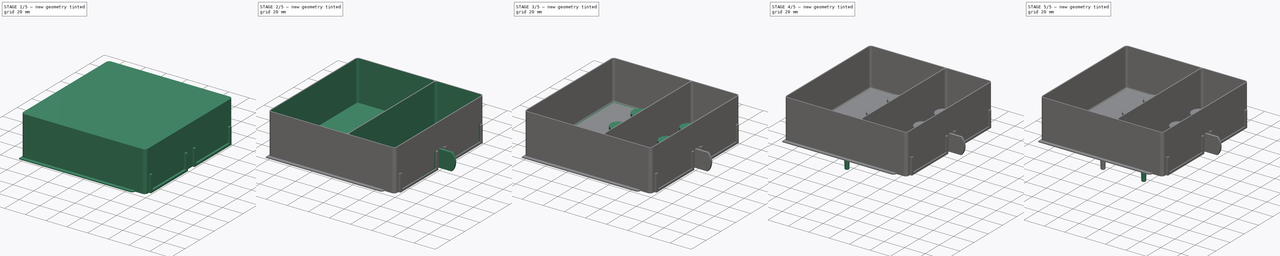
[diagram: build sequence overview — one tinted view per stage of 5, left to right]
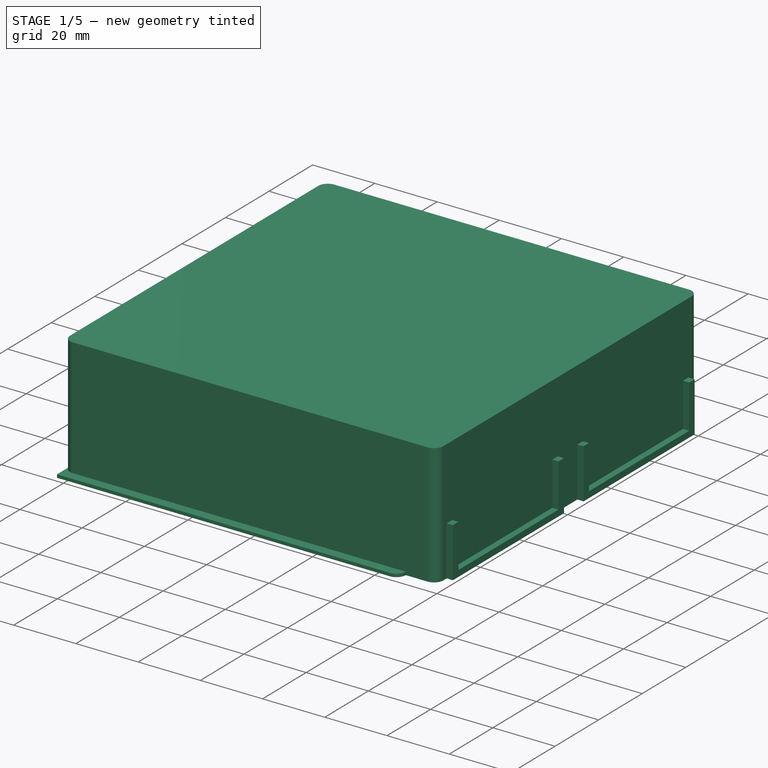
[diagram: stage 1 of 5 — iso view after this stage's code; geometry added in this stage tinted green]
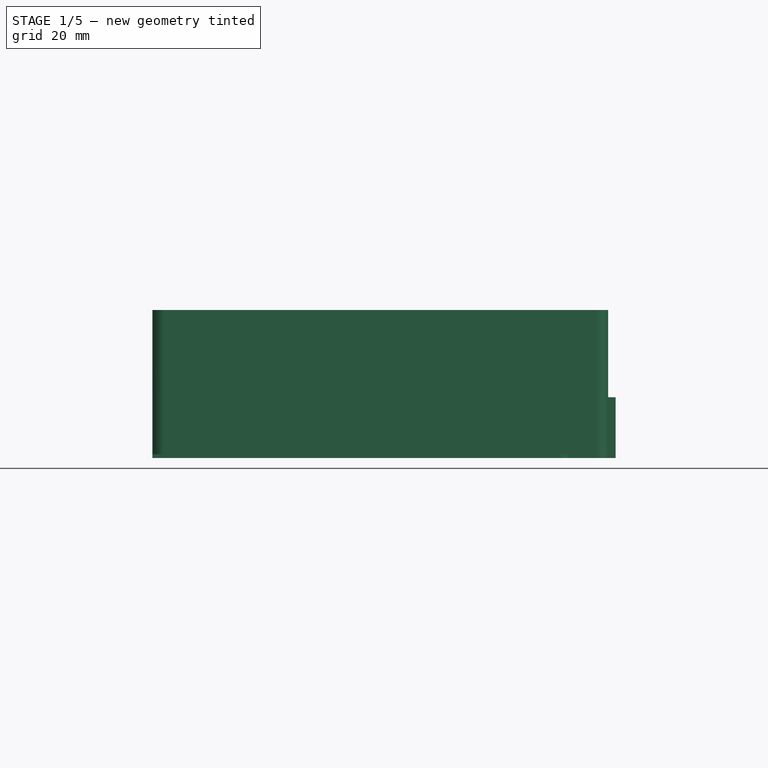
[diagram: stage 1 of 5 — front view after this stage's code; geometry added in this stage tinted green]
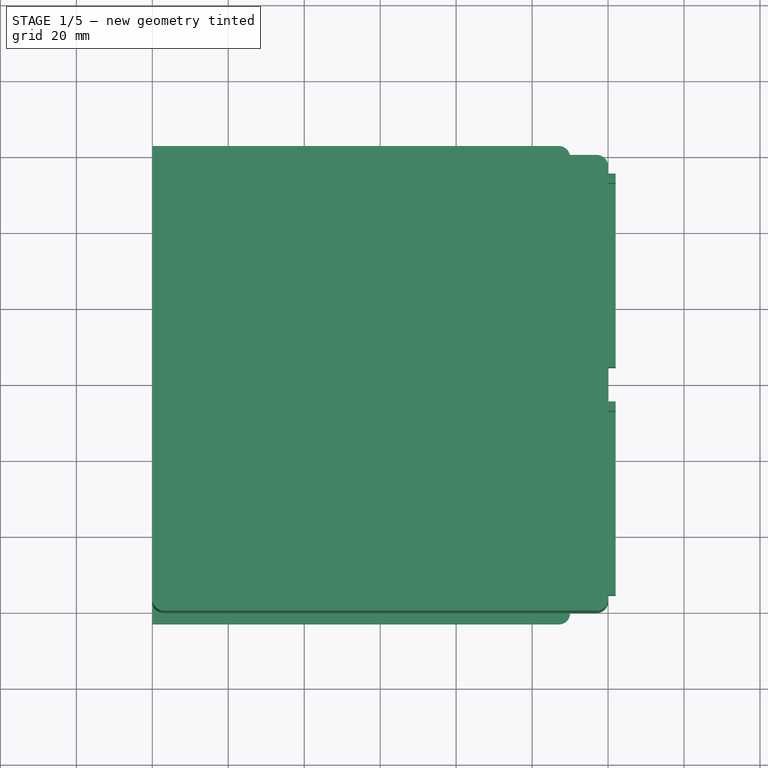
[diagram: stage 1 of 5 — top view after this stage's code; geometry added in this stage tinted green]
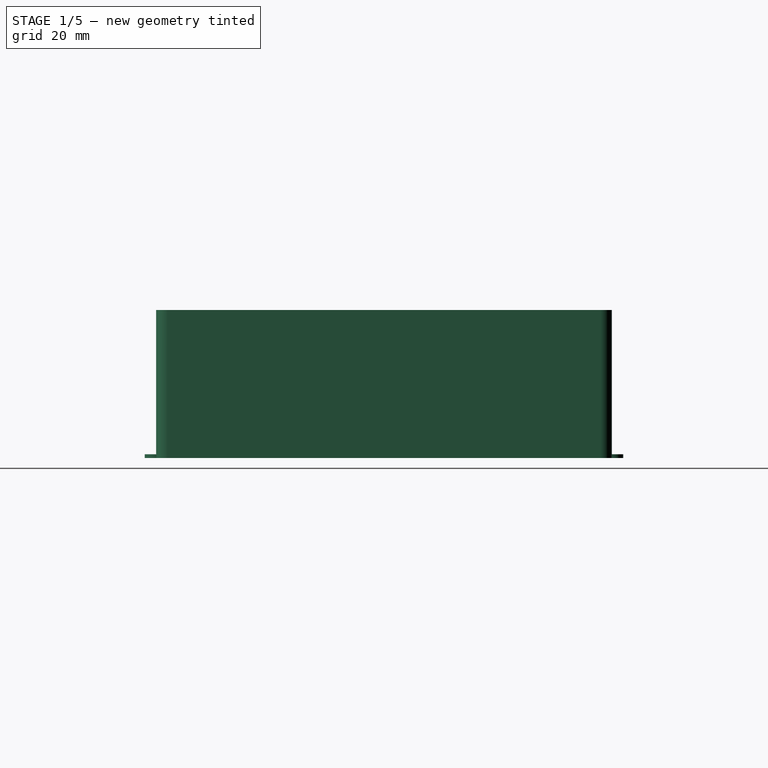
[diagram: stage 1 of 5 — right view after this stage's code; geometry added in this stage tinted green]
FCSTD DOCUMENT  (FreeCAD 0.20R27422 (Git))
Label: _ER16_Clamps_Drawer
License: CreativeCommons Attribution
LicenseURL: http://creativecommons.org/licenses/by/4.0/
objects: Sketcher::SketchObject×13, PartDesign::Pad×7, PartDesign::Pocket×4, PartDesign::Body×4, PartDesign::Chamfer×4, PartDesign::Revolution×2, PartDesign::Mirrored×2, Spreadsheet::Sheet×1, PartDesign::Plane×1, PartDesign::FeatureBase×1, PartDesign::MultiTransform×1, Part::Feature×1, PartDesign::Fillet×1
note: 59 computed .brp shape members not serialized (recipe doc carries the construction recipe); baked Part::Feature solids carry a one-line shape summary decoded from their .brp

FEATURE [Spreadsheet::Sheet] Spreadsheet  label="DrawerHight"
  cells = A2=please enter the desired height in mm; A3=Hight:; B3(hight)=39; A5=Info:; A6=1U = 19mm; A7=2U = 39mm; A8=3U = 59mm; A9=4U = 79mm; A10=5U = 99mm; A11=6U = 119mm
FEATURE [Sketcher::SketchObject] Sketch
  FullyConstrained = false
  MapMode = 5
  Support = -> [XY_Plane]
  sketch-geometry (8):
    g0: LineSegment StartX=-57 StartY=60 StartZ=0 EndX=57 EndY=60 EndZ=0
    g1: LineSegment StartX=60 StartY=57 StartZ=0 EndX=60 EndY=-57 EndZ=0
    g2: LineSegment StartX=57 StartY=-60 StartZ=0 EndX=-57 EndY=-60 EndZ=0
    g3: LineSegment StartX=-60 StartY=-57 StartZ=0 EndX=-60 EndY=57 EndZ=0
    g4: ArcOfCircle CenterX=-57 CenterY=57 CenterZ=0 NormalX=0 NormalY=0 NormalZ=1 AngleXU=0 Radius=3 StartAngle=1.5708 EndAngle=3.14159
    g5: ArcOfCircle CenterX=57 CenterY=57 CenterZ=0 NormalX=0 NormalY=0 NormalZ=1 AngleXU=0 Radius=3 StartAngle=0 EndAngle=1.5708
    g6: ArcOfCircle CenterX=57 CenterY=-57 CenterZ=0 NormalX=0 NormalY=0 NormalZ=1 AngleXU=0 Radius=3 StartAngle=4.71239 EndAngle=6.28319
    g7: ArcOfCircle CenterX=-57 CenterY=-57 CenterZ=0 NormalX=0 NormalY=0 NormalZ=1 AngleXU=0 Radius=3 StartAngle=3.14159 EndAngle=4.71239
  constraints (19):
    c: Horizontal(g0)
    c: Horizontal(g2)
    c: Vertical(g1)
    c: Vertical(g3)
    c: Equal(g0,g3)
    c: Tangent(g3,g4) = 1.5708
    c: Tangent(g0,g4) = 1.5708
    c: Tangent(g0,g5) = 1.5708
    c: Tangent(g1,g5) = 1.5708
    c: Tangent(g1,g6) = 1.5708
    c: Tangent(g2,g6) = 1.5708
    c: Tangent(g2,g7) = 1.5708
    c: Tangent(g3,g7) = 1.5708
    c: Equal(g7,g4)
    c: Equal(g4,g5)
    c: Equal(g5,g6)
    c: Symmetric(g5,g7,g-1)
    c: DistanceX(g3,g1) = 120
    c: Radius(g7) = 3
FEATURE [PartDesign::Pad] Pad
  AllowMultiFace = false
  Direction = (0,0,1)
  Length = 39
  Length2 = 100
  Profile = -> Sketch
  Type = 0
  expr: Length = <<DrawerHight>>.hight
FEATURE [Sketcher::SketchObject] Sketch001
  ExternalGeometry = -> [Sketch]
  FullyConstrained = false
  MapMode = 5
  Support = -> [XY_Plane]
  sketch-geometry (6):
    g0: LineSegment StartX=-60 StartY=63 StartZ=0 EndX=47 EndY=63 EndZ=0
    g1: LineSegment StartX=50 StartY=60 StartZ=0 EndX=50 EndY=-60 EndZ=0
    g2: LineSegment StartX=47 StartY=-63 StartZ=0 EndX=-60 EndY=-63 EndZ=0
    g3: LineSegment StartX=-60 StartY=-63 StartZ=0 EndX=-60 EndY=63 EndZ=0
    g4: ArcOfCircle CenterX=47 CenterY=60 CenterZ=0 NormalX=0 NormalY=0 NormalZ=1 AngleXU=0 Radius=3 StartAngle=-9e-16 EndAngle=1.5708
    g5: ArcOfCircle CenterX=47 CenterY=-60 CenterZ=0 NormalX=0 NormalY=0 NormalZ=1 AngleXU=0 Radius=3 StartAngle=4.71239 EndAngle=6.28319
  constraints (15):
    c: Coincident(g2,g3)
    c: Coincident(g3,g0)
    c: Horizontal(g0)
    c: Horizontal(g2)
    c: Vertical(g1)
    c: Tangent(g0,g4) = 1.5708
    c: Tangent(g1,g4) = 1.5708
    c: Tangent(g2,g5) = 1.5708
    c: Tangent(g1,g5) = 1.5708
    c: Equal(g5,g4)
    c: Symmetric(g2,g0,g-1)
    c: PointOnObject(g-3,g3)
    c: DistanceY(g3,g3) = 126
    c: DistanceX(g0,g1) = 110
    c: Radius(g4) = 3
FEATURE [PartDesign::Pad] Pad001
  AllowMultiFace = false
  BaseFeature = -> Pad
  Direction = (0,0,1)
  Length = 1
  Length2 = 100
  Profile = -> Sketch001
  Type = 0
FEATURE [PartDesign::Plane] DatumPlane
  Length = 143.96
  MapMode = 5
  Placement = pos=(60,0,0) rot=(0.57735,0.57735,0.57735;2.0944rad)
  ResizeMode = 0
  Support = -> [Pad001]
  Width = 81.96
FEATURE [Sketcher::SketchObject] Sketch002
  FullyConstrained = true
  MapMode = 5
  Placement = pos=(60,0,0) rot=(0.57735,0.57735,0.57735;2.0944rad)
  Support = -> [Pad001]
  sketch-geometry (8):
    g0: LineSegment StartX=-55.5 StartY=16 StartZ=0 EndX=-4.5 EndY=16 EndZ=0
    g1: LineSegment StartX=-4.5 StartY=16 StartZ=0 EndX=-4.5 EndY=0 EndZ=0
    g2: LineSegment StartX=-4.5 StartY=0 StartZ=0 EndX=-55.5 EndY=0 EndZ=0
    g3: LineSegment StartX=-55.5 StartY=0 StartZ=0 EndX=-55.5 EndY=16 EndZ=0
    g4: LineSegment StartX=4.5 StartY=0 StartZ=0 EndX=55.5 EndY=0 EndZ=0
    g5: LineSegment StartX=55.5 StartY=0 StartZ=0 EndX=55.5 EndY=16 EndZ=0
    g6: LineSegment StartX=55.5 StartY=16 StartZ=0 EndX=4.5 EndY=16 EndZ=0
    g7: LineSegment StartX=4.5 StartY=16 StartZ=0 EndX=4.5 EndY=0 EndZ=0
  constraints (23):
    c: Coincident(g0,g1)
    c: Coincident(g1,g2)
    c: Coincident(g2,g3)
    c: Coincident(g3,g0)
    c: Horizontal(g0)
    c: Horizontal(g2)
    c: Vertical(g1)
    c: Vertical(g3)
    c: PointOnObject(g1,g-1)
    c: Coincident(g4,g5)
    c: Coincident(g5,g6)
    c: Coincident(g6,g7)
    c: Coincident(g7,g4)
    c: Horizontal(g4)
    c: Horizontal(g6)
    c: Vertical(g5)
    c: Vertical(g7)
    c: Symmetric(g1,g4,g-2)
    c: DistanceX(g1,g4) = 9
    c: DistanceX(g2,g2) = 51
    c: DistanceY(g3,g3) = 16
    c: Equal(g1,g7)
    c: Equal(g4,g2)
FEATURE [PartDesign::Pad] Pad002
  AllowMultiFace = false
  BaseFeature = -> Pad001
  Direction = (1,0,0)
  Length = 2
  Length2 = 100
  Profile = -> Sketch002
  Type = 0
FEATURE [Sketcher::SketchObject] Sketch003
  FullyConstrained = true
  MapMode = 5
  Placement = pos=(60,0,0) rot=(0.57735,0.57735,0.57735;2.0944rad)
  Support = -> [DatumPlane]
  sketch-geometry (8):
    g0: LineSegment StartX=-53 StartY=16 StartZ=0 EndX=-7 EndY=16 EndZ=0
    g1: LineSegment StartX=-7 StartY=16 StartZ=0 EndX=-7 EndY=2 EndZ=0
    g2: LineSegment StartX=-7 StartY=2 StartZ=0 EndX=-53 EndY=2 EndZ=0
    g3: LineSegment StartX=-53 StartY=2 StartZ=0 EndX=-53 EndY=16 EndZ=0
    g4: LineSegment StartX=7 StartY=16 StartZ=0 EndX=53 EndY=16 EndZ=0
    g5: LineSegment StartX=53 StartY=16 StartZ=0 EndX=53 EndY=2 EndZ=0
    g6: LineSegment StartX=53 StartY=2 StartZ=0 EndX=7 EndY=2 EndZ=0
    g7: LineSegment StartX=7 StartY=2 StartZ=0 EndX=7 EndY=16 EndZ=0
  constraints (23):
    c: Coincident(g0,g1)
    c: Coincident(g1,g2)
    c: Coincident(g2,g3)
    c: Coincident(g3,g0)
    c: Horizontal(g0)
    c: Horizontal(g2)
    c: Vertical(g1)
    c: Vertical(g3)
    c: Coincident(g4,g5)
    c: Coincident(g5,g6)
    c: Coincident(g6,g7)
    c: Coincident(g7,g4)
    c: Horizontal(g4)
    c: Horizontal(g6)
    c: Vertical(g5)
    c: Vertical(g7)
    c: Equal(g1,g7)
    c: Symmetric(g6,g1,g-2)
    c: Equal(g2,g6)
    c: DistanceY(g-1,g1) = 2
    c: DistanceX(g0,g4) = 14
    c: DistanceY(g3,g3) = 14
    c: DistanceX(g0,g0) = 46
FEATURE [PartDesign::Pocket] Pocket
  AllowMultiFace = false
  BaseFeature = -> Pad002
  Direction = (-1,0,0)
  Length = 3
  Length2 = 100
  Profile = -> Sketch003
  Reversed = true
  Type = 0
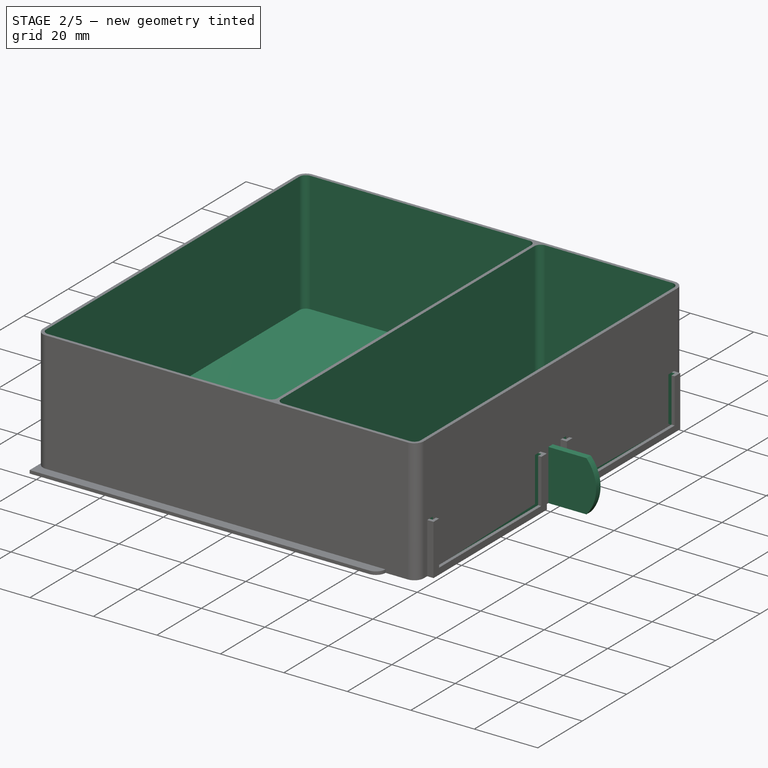
[diagram: stage 2 of 5 — iso view after this stage's code; geometry added in this stage tinted green]
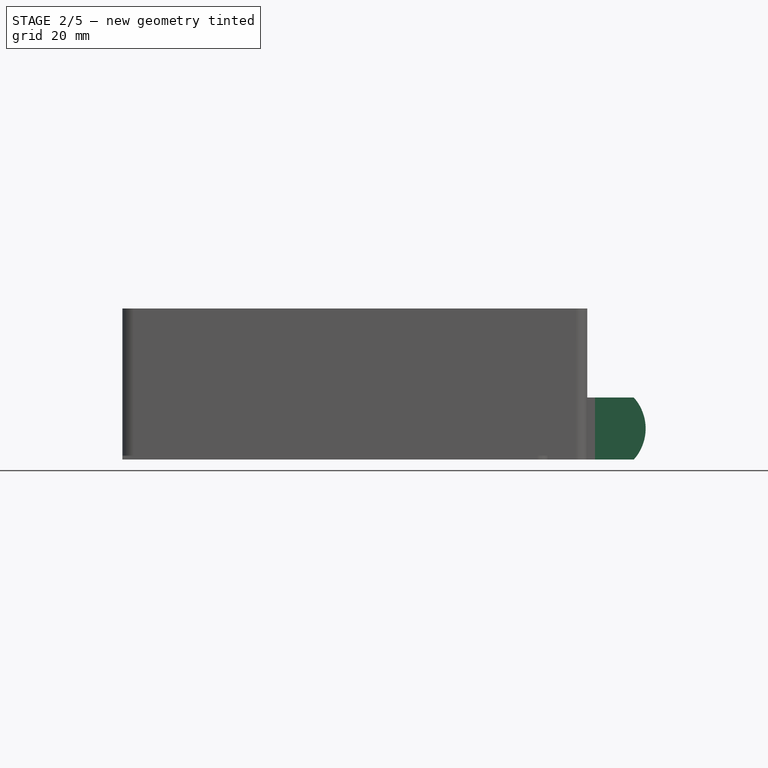
[diagram: stage 2 of 5 — front view after this stage's code; geometry added in this stage tinted green]
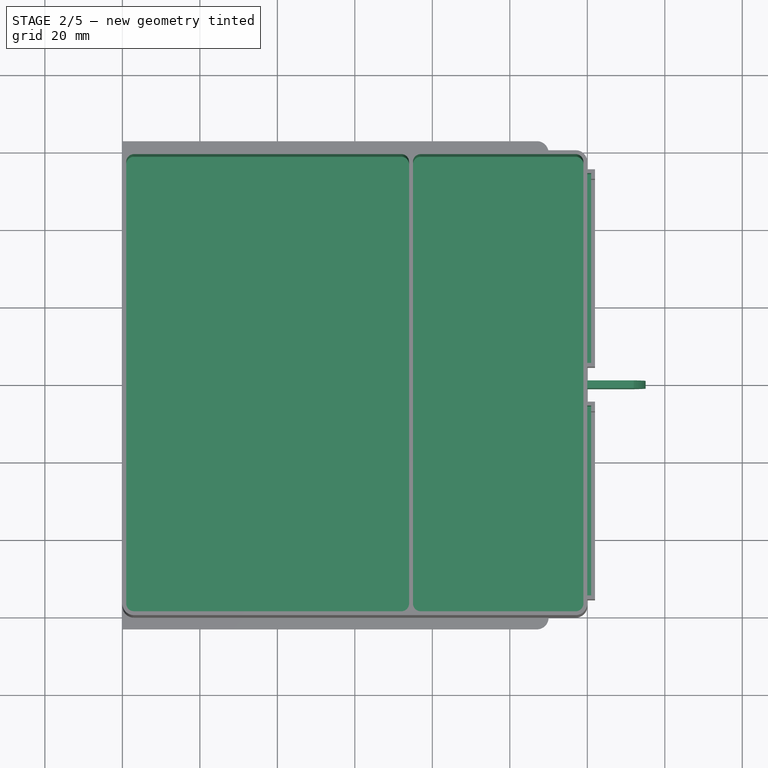
[diagram: stage 2 of 5 — top view after this stage's code; geometry added in this stage tinted green]
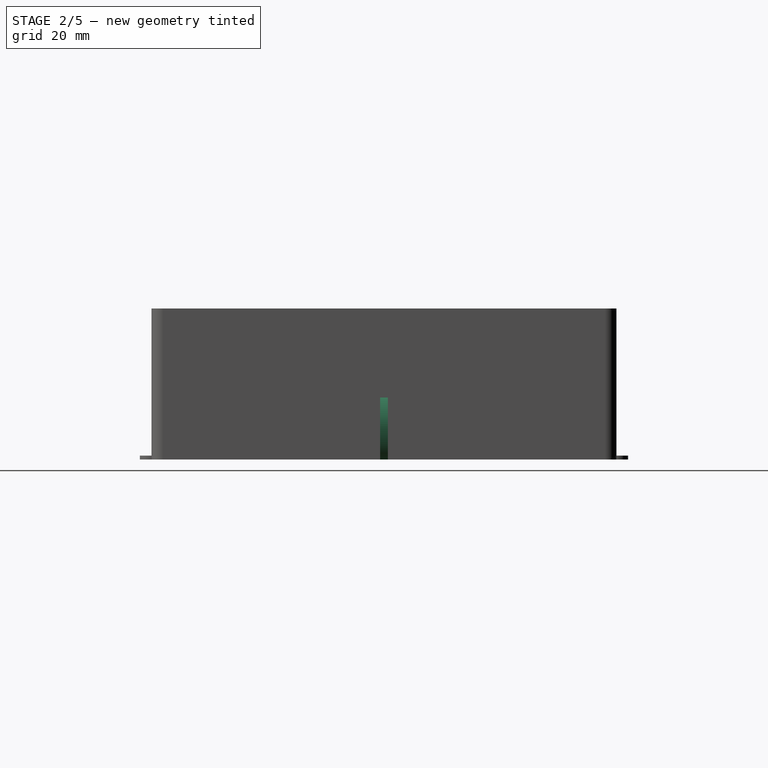
[diagram: stage 2 of 5 — right view after this stage's code; geometry added in this stage tinted green]
FEATURE [Sketcher::SketchObject] Sketch004
  FullyConstrained = true
  MapMode = 5
  Placement = pos=(60,0,0) rot=(0.57735,0.57735,0.57735;2.0944rad)
  Support = -> [DatumPlane]
  sketch-geometry (8):
    g0: LineSegment StartX=-5.5 StartY=16 StartZ=0 EndX=-54.5 EndY=16 EndZ=0
    g1: LineSegment StartX=-54.5 StartY=16 StartZ=0 EndX=-54.5 EndY=1 EndZ=0
    g2: LineSegment StartX=-54.5 StartY=1 StartZ=0 EndX=-5.5 EndY=1 EndZ=0
    g3: LineSegment StartX=-5.5 StartY=1 StartZ=0 EndX=-5.5 EndY=16 EndZ=0
    g4: LineSegment StartX=5.5 StartY=16 StartZ=0 EndX=54.5 EndY=16 EndZ=0
    g5: LineSegment StartX=54.5 StartY=16 StartZ=0 EndX=54.5 EndY=1 EndZ=0
    g6: LineSegment StartX=54.5 StartY=1 StartZ=0 EndX=5.5 EndY=1 EndZ=0
    g7: LineSegment StartX=5.5 StartY=1 StartZ=0 EndX=5.5 EndY=16 EndZ=0
  constraints (23):
    c: Coincident(g0,g1)
    c: Coincident(g1,g2)
    c: Coincident(g2,g3)
    c: Coincident(g3,g0)
    c: Horizontal(g0)
    c: Horizontal(g2)
    c: Vertical(g1)
    c: Vertical(g3)
    c: Coincident(g4,g5)
    c: Coincident(g5,g6)
    c: Coincident(g6,g7)
    c: Coincident(g7,g4)
    c: Horizontal(g4)
    c: Horizontal(g6)
    c: Vertical(g5)
    c: Vertical(g7)
    c: Symmetric(g6,g2,g-2)
    c: DistanceY(g-1,g2) = 1
    c: DistanceY(g1,g1) = 15
    c: DistanceX(g2,g2) = 49
    c: Equal(g2,g6)
    c: Equal(g3,g7)
    c: DistanceX(g0,g4) = 11
FEATURE [PartDesign::Pocket] Pocket001
  AllowMultiFace = false
  BaseFeature = -> Pocket
  Direction = (-1,0,0)
  Length = 1
  Length2 = 100
  Profile = -> Sketch004
  Reversed = true
  Type = 0
FEATURE [Sketcher::SketchObject] Sketch005
  ExternalGeometry = -> [Sketch002]
  FullyConstrained = true
  MapMode = 5
  Placement = pos=(0,0,0) rot=(1,0,0;1.5708rad)
  Support = -> [XZ_Plane]
  sketch-geometry (4):
    g0: ArcOfCircle CenterX=63.0557 CenterY=8 CenterZ=0 NormalX=0 NormalY=0 NormalZ=1 AngleXU=0 Radius=12 StartAngle=5.55346 EndAngle=7.01291
    g1: LineSegment StartX=72 StartY=16 StartZ=0 EndX=60 EndY=16 EndZ=0
    g2: LineSegment StartX=60 StartY=16 StartZ=0 EndX=60 EndY=1.2859e-11 EndZ=0
    g3: LineSegment StartX=60 StartY=1.28582e-11 StartZ=0 EndX=72 EndY=1.28582e-11 EndZ=0
  constraints (11):
    c: Coincident(g0,g1)
    c: Coincident(g1,g-3)
    c: Horizontal(g1)
    c: Coincident(g1,g2)
    c: Coincident(g2,g-3)
    c: Coincident(g2,g3)
    c: Coincident(g3,g0)
    c: Horizontal(g3)
    c: Equal(g1,g3)
    c: DistanceX(g1,g1) = 12
    c: Radius(g0) = 12
FEATURE [PartDesign::Pad] Pad003
  AllowMultiFace = false
  BaseFeature = -> Pocket001
  Direction = (0,-1,-2e-16)
  Length = 2
  Length2 = 100
  Midplane = true
  Profile = -> Sketch005
  Type = 0
FEATURE [PartDesign::Body] Body  label="Main-Body"
  Group = -> [Sketch,Pad,Sketch001,Pad001,DatumPlane,Sketch002,Pad002,Sketch003,Pocket,Sketch004,Pocket001,Sketch005,Pad003]
  Origin = -> Origin
  Tip = -> Pad003
FEATURE [PartDesign::FeatureBase] Clone
  BaseFeature = -> Body
FEATURE [Sketcher::SketchObject] Sketch006
  AttachmentOffset = pos=(0,0,39) rot=(0,0,1;0rad)
  FullyConstrained = true
  MapMode = 5
  Placement = pos=(0,0,39) rot=(0,0,1;0rad)
  Support = -> [XY_Plane001]
  expr: .AttachmentOffset.Base.z = <<DrawerHight>>.hight
  sketch-geometry (28):
    g0: LineSegment StartX=-60 StartY=60 StartZ=0 EndX=60 EndY=60 EndZ=0
    g1: LineSegment StartX=60 StartY=60 StartZ=0 EndX=60 EndY=-60 EndZ=0
    g2: LineSegment StartX=60 StartY=-60 StartZ=0 EndX=-60 EndY=-60 EndZ=0
    g3: LineSegment StartX=-60 StartY=-60 StartZ=0 EndX=-60 EndY=60 EndZ=0
    g4: LineSegment StartX=-57 StartY=59 StartZ=0 EndX=12 EndY=59 EndZ=0
    g5: LineSegment StartX=14 StartY=57 StartZ=0 EndX=14 EndY=-57 EndZ=0
    g6: LineSegment StartX=12 StartY=-59 StartZ=0 EndX=-57 EndY=-59 EndZ=0
    g7: LineSegment StartX=-59 StartY=-57 StartZ=0 EndX=-59 EndY=57 EndZ=0
    g8: LineSegment StartX=17 StartY=59 StartZ=0 EndX=57 EndY=59 EndZ=0
    g9: LineSegment StartX=59 StartY=57 StartZ=0 EndX=59 EndY=-57 EndZ=0
    g10: LineSegment StartX=57 StartY=-59 StartZ=0 EndX=17 EndY=-59 EndZ=0
    g11: LineSegment StartX=15 StartY=-57 StartZ=0 EndX=15 EndY=57 EndZ=0
    g12: ArcOfCircle CenterX=-57 CenterY=57 CenterZ=0 NormalX=0 NormalY=0 NormalZ=1 AngleXU=0 Radius=2 StartAngle=1.5708 EndAngle=3.14159
    g13: GeomPoint X=-59 Y=59 Z=0
    g14: ArcOfCircle CenterX=12 CenterY=57 CenterZ=0 NormalX=0 NormalY=0 NormalZ=1 AngleXU=0 Radius=2 StartAngle=2.1e-15 EndAngle=1.5708
    g15: GeomPoint X=14 Y=59 Z=0
    g16: ArcOfCircle CenterX=12 CenterY=-57 CenterZ=0 NormalX=0 NormalY=0 NormalZ=1 AngleXU=0 Radius=2 StartAngle=4.71239 EndAngle=6.28319
    g17: GeomPoint X=14 Y=-59 Z=0
    g18: ArcOfCircle CenterX=-57 CenterY=-57 CenterZ=0 NormalX=0 NormalY=0 NormalZ=1 AngleXU=0 Radius=2 StartAngle=3.14159 EndAngle=4.71239
    g19: GeomPoint X=-59 Y=-59 Z=0
    g20: ArcOfCircle CenterX=17 CenterY=57 CenterZ=0 NormalX=0 NormalY=0 NormalZ=1 AngleXU=0 Radius=2 StartAngle=1.5708 EndAngle=3.14159
    g21: GeomPoint X=15 Y=59 Z=0
    g22: ArcOfCircle CenterX=57 CenterY=57 CenterZ=0 NormalX=0 NormalY=0 NormalZ=1 AngleXU=0 Radius=2 StartAngle=-1.469e-12 EndAngle=1.5708
    g23: GeomPoint X=59 Y=59 Z=0
    g24: ArcOfCircle CenterX=57 CenterY=-57 CenterZ=0 NormalX=0 NormalY=0 NormalZ=1 AngleXU=0 Radius=2 StartAngle=4.71239 EndAngle=6.28319
    g25: GeomPoint X=59 Y=-59 Z=0
    g26: ArcOfCircle CenterX=17 CenterY=-57 CenterZ=0 NormalX=0 NormalY=0 NormalZ=1 AngleXU=0 Radius=2 StartAngle=3.14159 EndAngle=4.71239
    g27: GeomPoint X=15 Y=-59 Z=0
  constraints (66):
    c: Coincident(g0,g1)
    c: Coincident(g1,g2)
    c: Coincident(g2,g3)
    c: Coincident(g3,g0)
    c: Horizontal(g0)
    c: Horizontal(g2)
    c: Vertical(g1)
    c: Vertical(g3)
    c: Symmetric(g2,g0,g-1)
    c: Equal(g3,g0)
    c: DistanceX(g0,g0) = 120
    c: Horizontal(g4)
    c: Horizontal(g6)
    c: Vertical(g5)
    c: Horizontal(g8)
    c: Horizontal(g10)
    c: Vertical(g9)
    c: Vertical(g11)
    c: Horizontal(g17,g27)
    c: Horizontal(g15,g21)
    c: Symmetric(g19,g13,g-1)
    c: PointOnObject(g13,g4)
    c: PointOnObject(g13,g7)
    c: Tangent(g4,g12) = 1.5708
    c: Tangent(g7,g12) = 1.5708
    c: PointOnObject(g15,g4)
    c: PointOnObject(g15,g5)
    c: Tangent(g4,g14) = 1.5708
    c: Tangent(g5,g14) = 1.5708
    c: PointOnObject(g17,g5)
    c: PointOnObject(g17,g6)
    c: Tangent(g5,g16) = 1.5708
    c: Tangent(g6,g16) = 1.5708
    c: PointOnObject(g19,g6)
    c: PointOnObject(g19,g7)
    c: Tangent(g6,g18) = 1.5708
    c: Tangent(g7,g18) = 1.5708
    c: PointOnObject(g21,g8)
    c: PointOnObject(g21,g11)
    c: Tangent(g8,g20) = 1.5708
    c: Tangent(g11,g20) = 1.5708
    c: PointOnObject(g23,g8)
    c: PointOnObject(g23,g9)
    c: Tangent(g8,g22) = 1.5708
    c: Tangent(g9,g22) = 1.5708
    c: PointOnObject(g25,g9)
    c: PointOnObject(g25,g10)
    c: Tangent(g9,g24) = 1.5708
    c: Tangent(g10,g24) = 1.5708
    c: PointOnObject(g27,g11)
    c: Tangent(g10,g26) = 1.5708
    c: Tangent(g11,g26) = 1.5708
    c: Equal(g12,g14)
    c: Equal(g14,g20)
    c: Equal(g20,g22)
    c: Equal(g22,g24)
    c: Equal(g24,g26)
    c: Equal(g26,g16)
    c: Equal(g16,g18)
    c: Radius(g22) = 2
    c: DistanceY(g6,g4) = 118
    c: DistanceX(g7,g9) = 118
    c: DistanceX(g5,g11) = 1
    c: Symmetric(g19,g25,g-2)
    c: DistanceX(g11,g9) = 44
    c: DistanceX(g7,g5) = 73
FEATURE [PartDesign::Pocket] Pocket002
  BaseFeature = -> Clone
  Direction = (0,0,-1)
  Length = 38
  Length2 = 5
  Profile = -> Sketch006
  ReferenceAxis = -> Sketch006 [N_Axis]
  Type = 0
  expr: Length = <<DrawerHight>>.hight - 1
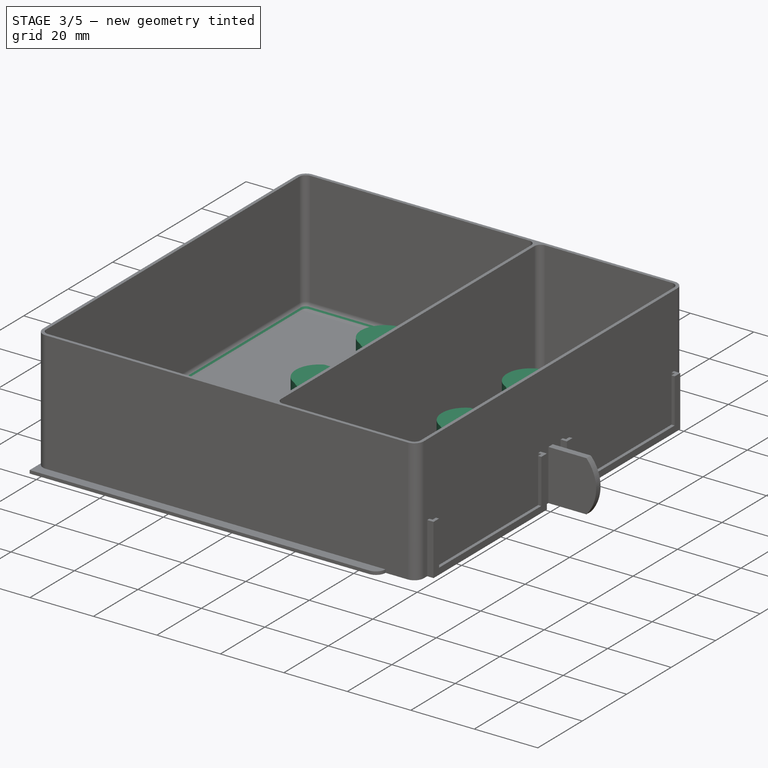
[diagram: stage 3 of 5 — iso view after this stage's code; geometry added in this stage tinted green]
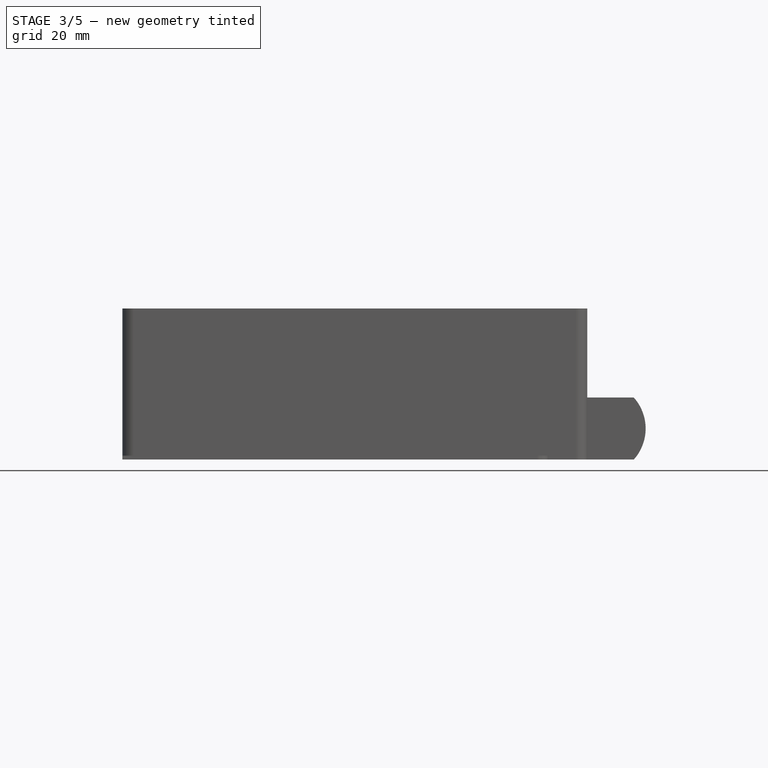
[diagram: stage 3 of 5 — front view after this stage's code; geometry added in this stage tinted green]
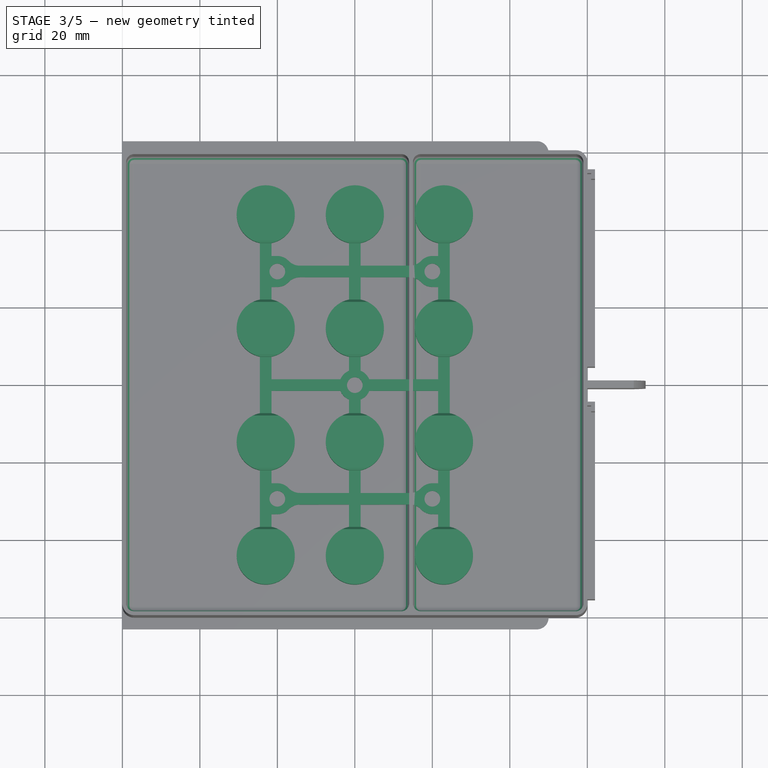
[diagram: stage 3 of 5 — top view after this stage's code; geometry added in this stage tinted green]
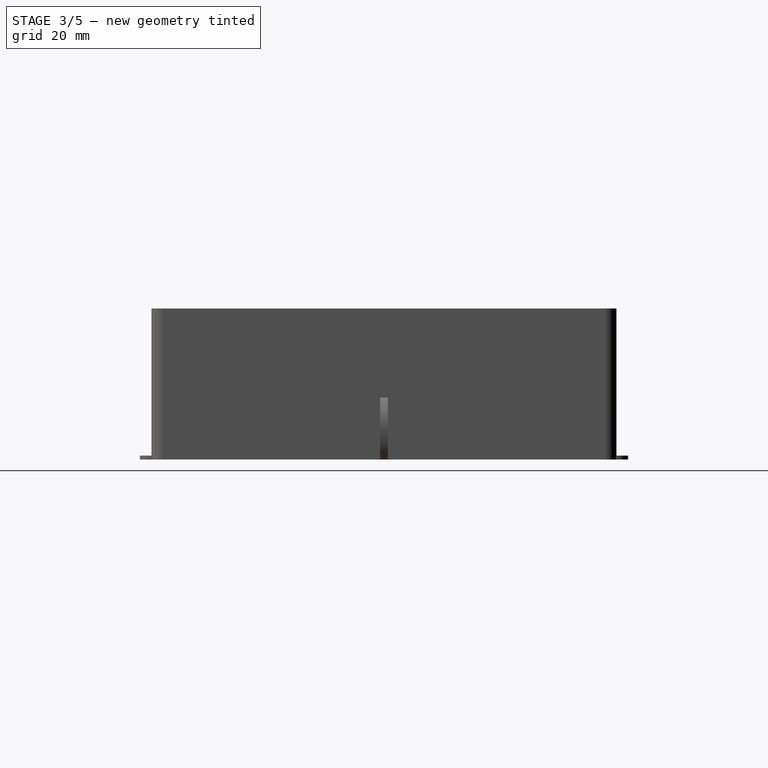
[diagram: stage 3 of 5 — right view after this stage's code; geometry added in this stage tinted green]
FEATURE [PartDesign::Body] Body002  label="Reception_Top"
  Group = -> [Sketch007,Pad004,Sketch008,Revolution,MultiTransform,Mirrored,Mirrored001,Sketch009,Revolution001,Sketch010,Pad005,Chamfer003]
  Origin = -> Origin002
  Placement = pos=(-22.5,0,27) rot=(0,0,1;0rad)
  Tip = -> Chamfer003
FEATURE [Sketcher::SketchObject] Sketch012
  FullyConstrained = true
  MapMode = 5
  Support = -> [XY_Plane003]
  sketch-geometry (137):
    g0: LineSegment StartX=-36 StartY=58.5 StartZ=0 EndX=36 EndY=58.5 EndZ=0
    g1: LineSegment StartX=38.5 StartY=56 StartZ=0 EndX=38.5 EndY=-56 EndZ=0
    g2: LineSegment StartX=36 StartY=-58.5 StartZ=0 EndX=-36 EndY=-58.5 EndZ=0
    g3: LineSegment StartX=-38.5 StartY=-56 StartZ=0 EndX=-38.5 EndY=56 EndZ=0
    g4: ArcOfCircle CenterX=-36 CenterY=56 CenterZ=0 NormalX=0 NormalY=0 NormalZ=1 AngleXU=0 Radius=2.5 StartAngle=1.5708 EndAngle=3.14159
    g5: ArcOfCircle CenterX=36 CenterY=56 CenterZ=0 NormalX=0 NormalY=0 NormalZ=1 AngleXU=0 Radius=2.5 StartAngle=0 EndAngle=1.5708
    g6: ArcOfCircle CenterX=36 CenterY=-56 CenterZ=0 NormalX=0 NormalY=0 NormalZ=1 AngleXU=0 Radius=2.5 StartAngle=4.71239 EndAngle=6.28319
    g7: ArcOfCircle CenterX=-36 CenterY=-56 CenterZ=0 NormalX=0 NormalY=0 NormalZ=1 AngleXU=0 Radius=2.5 StartAngle=3.14159 EndAngle=4.71239
    g8: LineSegment StartX=-23 StartY=44 StartZ=0 EndX=-23 EndY=14.6667 EndZ=0
    g9: LineSegment StartX=-23 StartY=14.6667 StartZ=0 EndX=-23 EndY=-14.6667 EndZ=0
    g10: LineSegment StartX=-23 StartY=-14.6667 StartZ=0 EndX=-23 EndY=-44 EndZ=0
    g11: LineSegment StartX=-23 StartY=-14.6667 StartZ=0 EndX=0 EndY=-14.6667 EndZ=0
    g12: LineSegment StartX=-23 StartY=14.6667 StartZ=0 EndX=0 EndY=14.6667 EndZ=0
    g13: LineSegment StartX=0 StartY=14.6667 StartZ=0 EndX=23 EndY=14.6667 EndZ=0
    g14: LineSegment StartX=0 StartY=-14.6667 StartZ=0 EndX=23 EndY=-14.6667 EndZ=0
    g15: LineSegment StartX=0 StartY=14.6667 StartZ=0 EndX=0 EndY=44 EndZ=0
    g16: LineSegment StartX=0 StartY=14.6667 StartZ=0 EndX=0 EndY=-14.6667 EndZ=0
    g17: LineSegment StartX=0 StartY=-14.6667 StartZ=0 EndX=0 EndY=-44 EndZ=0
    g18: LineSegment StartX=23 StartY=14.6667 StartZ=0 EndX=23 EndY=44 EndZ=0
    g19: LineSegment StartX=23 StartY=14.6667 StartZ=0 EndX=23 EndY=-14.6667 EndZ=0
    g20: LineSegment StartX=23 StartY=-14.6667 StartZ=0 EndX=23 EndY=-44 EndZ=0
    g21: LineSegment StartX=23 StartY=-44 StartZ=0 EndX=0 EndY=-44 EndZ=0
    g22: LineSegment StartX=-23 StartY=-44 StartZ=0 EndX=0 EndY=-44 EndZ=0
    g23: LineSegment StartX=-23 StartY=44 StartZ=0 EndX=0 EndY=44 EndZ=0
    g24: LineSegment StartX=0 StartY=44 StartZ=0 EndX=23 EndY=44 EndZ=0
    g25: ArcOfCircle CenterX=-23 CenterY=44 CenterZ=0 NormalX=0 NormalY=0 NormalZ=1 AngleXU=0 Radius=7.5 StartAngle=4.91375 EndAngle=10.7942
    g26: ArcOfCircle CenterX=-23 CenterY=14.6667 CenterZ=0 NormalX=0 NormalY=0 NormalZ=1 AngleXU=0 Radius=7.5 StartAngle=1.77215 EndAngle=4.51103
    g27: ArcOfCircle CenterX=-23 CenterY=-14.6667 CenterZ=0 NormalX=0 NormalY=0 NormalZ=1 AngleXU=0 Radius=7.5 StartAngle=1.77215 EndAngle=4.51103
    g28: ArcOfCircle CenterX=-23 CenterY=-44 CenterZ=0 NormalX=0 NormalY=0 NormalZ=1 AngleXU=0 Radius=7.5 StartAngle=1.77215 EndAngle=7.65262
    g29: ArcOfCircle CenterX=0 CenterY=-44 CenterZ=0 NormalX=0 NormalY=0 NormalZ=1 AngleXU=0 Radius=7.5 StartAngle=1.77215 EndAngle=7.65262
    g30: ArcOfCircle CenterX=0 CenterY=-14.6667 CenterZ=0 NormalX=0 NormalY=0 NormalZ=1 AngleXU=0 Radius=7.5 StartAngle=1.77215 EndAngle=4.51103
    g31: ArcOfCircle CenterX=0 CenterY=14.6667 CenterZ=0 NormalX=0 NormalY=0 NormalZ=1 AngleXU=0 Radius=7.5 StartAngle=1.77215 EndAngle=4.51103
    g32: ArcOfCircle CenterX=0 CenterY=44 CenterZ=0 NormalX=0 NormalY=0 NormalZ=1 AngleXU=0 Radius=7.5 StartAngle=4.91375 EndAngle=10.7942
    g33: ArcOfCircle CenterX=23 CenterY=44 CenterZ=0 NormalX=0 NormalY=0 NormalZ=1 AngleXU=0 Radius=7.5 StartAngle=4.91375 EndAngle=10.7942
    g34: ArcOfCircle CenterX=23 CenterY=14.6667 CenterZ=0 NormalX=0 NormalY=0 NormalZ=1 AngleXU=0 Radius=7.5 StartAngle=1.77215 EndAngle=4.51103
    g35: ArcOfCircle CenterX=23 CenterY=-14.6667 CenterZ=0 NormalX=0 NormalY=0 NormalZ=1 AngleXU=0 Radius=7.5 StartAngle=1.77215 EndAngle=4.51103
    g36: ArcOfCircle CenterX=23 CenterY=-44 CenterZ=0 NormalX=0 NormalY=0 NormalZ=1 AngleXU=0 Radius=7.5 StartAngle=1.77215 EndAngle=7.65262
    g37: LineSegment StartX=-24.5 StartY=36.6515 StartZ=0 EndX=-24.5 EndY=22.0151 EndZ=0
    g38: LineSegment StartX=-21.5 StartY=36.6515 StartZ=0 EndX=-21.5 EndY=33.333 EndZ=0
    g39: LineSegment StartX=-24.5 StartY=7.3182 StartZ=0 EndX=-24.5 EndY=-7.3182 EndZ=0
    g40: LineSegment StartX=-21.5 StartY=7.3182 StartZ=0 EndX=-21.5 EndY=1.5 EndZ=0
    g41: LineSegment StartX=-24.5 StartY=-22.0151 StartZ=0 EndX=-24.5 EndY=-36.6515 EndZ=0
    g42: LineSegment StartX=-21.5 StartY=-22.0151 StartZ=0 EndX=-21.5 EndY=-25.333 EndZ=0
    g43: LineSegment StartX=-1.5 StartY=-36.6515 StartZ=0 EndX=-1.5 EndY=-30.833 EndZ=0
    g44: LineSegment StartX=1.5 StartY=-22.0151 StartZ=0 EndX=1.5 EndY=-27.833 EndZ=0
    g45: LineSegment StartX=-1.5 StartY=-7.3182 StartZ=0 EndX=-1.5 EndY=-3.7081 EndZ=0
    g46: LineSegment StartX=1.5 StartY=7.3182 StartZ=0 EndX=1.5 EndY=3.7081 EndZ=0
    g47: LineSegment StartX=-1.5 StartY=22.0151 StartZ=0 EndX=-1.5 EndY=27.833 EndZ=0
    g48: LineSegment StartX=1.5 StartY=36.6515 StartZ=0 EndX=1.5 EndY=30.833 EndZ=0
    g49: LineSegment StartX=21.5 StartY=36.6515 StartZ=0 EndX=21.5 EndY=33.333 EndZ=0
    g50: LineSegment StartX=24.5 StartY=36.6515 StartZ=0 EndX=24.5 EndY=22.0151 EndZ=0
    g51: LineSegment StartX=21.5 StartY=7.3182 StartZ=0 EndX=21.5 EndY=1.5 EndZ=0
    g52: LineSegment StartX=24.5 StartY=7.3182 StartZ=0 EndX=24.5 EndY=-7.3182 EndZ=0
    g53: LineSegment StartX=21.5 StartY=-22.0151 StartZ=0 EndX=21.5 EndY=-25.333 EndZ=0
    g54: LineSegment StartX=24.5 StartY=-22.0151 StartZ=0 EndX=24.5 EndY=-36.6515 EndZ=0
    g55: LineSegment StartX=-24.5 StartY=0 StartZ=0 EndX=-21.5 EndY=0 EndZ=0
    g56: LineSegment StartX=-1.5 StartY=0 StartZ=0 EndX=1.5 EndY=0 EndZ=0
    g57: LineSegment StartX=21.5 StartY=0 StartZ=0 EndX=24.5 EndY=0 EndZ=0
    g58: ArcOfCircle CenterX=-23 CenterY=14.6667 CenterZ=0 NormalX=0 NormalY=0 NormalZ=1 AngleXU=0 Radius=7.5 StartAngle=4.91375 EndAngle=7.65262
    g59: ArcOfCircle CenterX=-23 CenterY=-14.6667 CenterZ=0 NormalX=0 NormalY=0 NormalZ=1 AngleXU=0 Radius=7.5 StartAngle=4.91375 EndAngle=7.65262
    g60: ArcOfCircle CenterX=0 CenterY=14.6667 CenterZ=0 NormalX=0 NormalY=0 NormalZ=1 AngleXU=0 Radius=7.5 StartAngle=4.91375 EndAngle=7.65262
    g61: ArcOfCircle CenterX=23 CenterY=14.6667 CenterZ=0 NormalX=0 NormalY=0 NormalZ=1 AngleXU=0 Radius=7.5 StartAngle=4.91375 EndAngle=7.65262
    g62: ArcOfCircle CenterX=0 CenterY=-14.6667 CenterZ=0 NormalX=0 NormalY=0 NormalZ=1 AngleXU=0 Radius=7.5 StartAngle=4.91375 EndAngle=7.65262
    g63: ArcOfCircle CenterX=23 CenterY=-14.6667 CenterZ=0 NormalX=0 NormalY=0 NormalZ=1 AngleXU=0 Radius=7.5 StartAngle=4.91375 EndAngle=7.65262
    g64: ArcOfCircle CenterX=-20 CenterY=29.333 CenterZ=0 NormalX=0 NormalY=0 NormalZ=1 AngleXU=0 Radius=4 StartAngle=0.758041 EndAngle=1.5708
    g65: ArcOfCircle CenterX=-20 CenterY=29.333 CenterZ=0 NormalX=0 NormalY=0 NormalZ=1 AngleXU=0 Radius=4 StartAngle=4.71239 EndAngle=5.52514
    g66: LineSegment StartX=-20 StartY=33.333 StartZ=0 EndX=-21.5 EndY=33.333 EndZ=0
    g67: LineSegment StartX=-20 StartY=25.333 StartZ=0 EndX=-21.5 EndY=25.333 EndZ=0
    g68: LineSegment StartX=-14.1905 StartY=27.833 StartZ=0 EndX=-1.5 EndY=27.833 EndZ=0
    g69: LineSegment StartX=-14.1905 StartY=30.833 StartZ=0 EndX=-1.5 EndY=30.833 EndZ=0
    g70: LineSegment StartX=-21.5 StartY=25.333 StartZ=0 EndX=-21.5 EndY=22.0151 EndZ=0
    g71: LineSegment StartX=20 StartY=29.333 StartZ=0 EndX=-20 EndY=29.333 EndZ=0
    g72: LineSegment StartX=-20 StartY=29.333 StartZ=0 EndX=-20 EndY=-29.333 EndZ=0
    g73: LineSegment StartX=-20 StartY=-29.333 StartZ=0 EndX=20 EndY=-29.333 EndZ=0
    g74: LineSegment StartX=20 StartY=-29.333 StartZ=0 EndX=20 EndY=29.333 EndZ=0
    g75: ArcOfCircle CenterX=-14.1905 CenterY=23.833 CenterZ=0 NormalX=0 NormalY=0 NormalZ=1 AngleXU=0 Radius=4 StartAngle=1.5708 EndAngle=2.38355
    g76: ArcOfCircle CenterX=-14.1905 CenterY=34.833 CenterZ=0 NormalX=0 NormalY=0 NormalZ=1 AngleXU=0 Radius=4 StartAngle=3.89963 EndAngle=4.71239
    g77: LineSegment StartX=21.5 StartY=33.333 StartZ=0 EndX=20 EndY=33.333 EndZ=0
    g78: ArcOfCircle CenterX=20 CenterY=29.333 CenterZ=0 NormalX=0 NormalY=0 NormalZ=1 AngleXU=0 Radius=4 StartAngle=1.5708 EndAngle=2.38355
    g79: ArcOfCircle CenterX=14.1905 CenterY=34.833 CenterZ=0 NormalX=0 NormalY=0 NormalZ=1 AngleXU=0 Radius=4 StartAngle=4.71239 EndAngle=5.52514
    g80: LineSegment StartX=14.1905 StartY=30.833 StartZ=0 EndX=1.5 EndY=30.833 EndZ=0
    g81: LineSegment StartX=1.5 StartY=27.833 StartZ=0 EndX=14.1905 EndY=27.833 EndZ=0
    g82: ArcOfCircle CenterX=14.1905 CenterY=23.833 CenterZ=0 NormalX=0 NormalY=0 NormalZ=1 AngleXU=0 Radius=4 StartAngle=0.758041 EndAngle=1.5708
    g83: ArcOfCircle CenterX=20 CenterY=29.333 CenterZ=0 NormalX=0 NormalY=0 NormalZ=1 AngleXU=0 Radius=4 StartAngle=3.89963 EndAngle=4.71239
    g84: LineSegment StartX=20 StartY=25.333 StartZ=0 EndX=21.5 EndY=25.333 EndZ=0
    g85: LineSegment StartX=-1.5 StartY=30.833 StartZ=0 EndX=-1.5 EndY=36.6515 EndZ=0
    g86: LineSegment StartX=1.5 StartY=27.833 StartZ=0 EndX=1.5 EndY=22.0151 EndZ=0
    g87: LineSegment StartX=-1.5 StartY=30.833 StartZ=0 EndX=-1.5 EndY=27.833 EndZ=0
    g88: LineSegment StartX=21.5 StartY=25.333 StartZ=0 EndX=21.5 EndY=22.0151 EndZ=0
    g89: LineSegment StartX=-21.5 StartY=1.5 StartZ=0 EndX=-3.7081 EndY=1.5 EndZ=0
    g90: LineSegment StartX=3.7081 StartY=1.5 StartZ=0 EndX=21.5 EndY=1.5 EndZ=0
    g91: ArcOfCircle CenterX=0 CenterY=0 CenterZ=0 NormalX=0 NormalY=0 NormalZ=1 AngleXU=0 Radius=4 StartAngle=3.52599 EndAngle=4.32799
    g92: LineSegment StartX=-1.5 StartY=3.7081 StartZ=0 EndX=-1.5 EndY=7.3182 EndZ=0
    g93: LineSegment StartX=1.5 StartY=-3.7081 StartZ=0 EndX=1.5 EndY=-7.3182 EndZ=0
    g94: LineSegment StartX=-1.5 StartY=3.7081 StartZ=0 EndX=-1.5 EndY=-3.7081 EndZ=0
    g95: LineSegment StartX=1.5 StartY=3.7081 StartZ=0 EndX=1.5 EndY=-3.7081 EndZ=0
    g96: LineSegment StartX=-21.5 StartY=-1.5 StartZ=0 EndX=-3.7081 EndY=-1.5 EndZ=0
    g97: LineSegment StartX=3.7081 StartY=-1.5 StartZ=0 EndX=21.5 EndY=-1.5 EndZ=0
    g98: LineSegment StartX=-3.7081 StartY=1.5 StartZ=0 EndX=3.7081 EndY=1.5 EndZ=0
    g99: LineSegment StartX=-3.7081 StartY=-1.5 StartZ=0 EndX=3.7081 EndY=-1.5 EndZ=0
    g100: ArcOfCircle CenterX=0 CenterY=0 CenterZ=0 NormalX=0 NormalY=0 NormalZ=1 AngleXU=0 Radius=4 StartAngle=0.384397 EndAngle=1.1864
    g101: ArcOfCircle CenterX=0 CenterY=0 CenterZ=0 NormalX=0 NormalY=0 NormalZ=1 AngleXU=0 Radius=4 StartAngle=1.95519 EndAngle=2.7572
    g102: ArcOfCircle CenterX=0 CenterY=0 CenterZ=0 NormalX=0 NormalY=0 NormalZ=1 AngleXU=0 Radius=4 StartAngle=5.09679 EndAngle=5.89879
    g103: LineSegment StartX=3.7081 StartY=1.5 StartZ=0 EndX=3.7081 EndY=-1.5 EndZ=0
    g104: LineSegment StartX=-21.5 StartY=-1.5 StartZ=0 EndX=-21.5 EndY=-7.3182 EndZ=0
    g105: LineSegment StartX=21.5 StartY=-1.5 StartZ=0 EndX=21.5 EndY=-7.3182 EndZ=0
    g106: LineSegment StartX=21.5 StartY=1.5 StartZ=0 EndX=21.5 EndY=-1.5 EndZ=0
    g107: LineSegment StartX=-21.5 StartY=1.5 StartZ=0 EndX=-21.5 EndY=-1.5 EndZ=0
    g108: LineSegment StartX=-21.5 StartY=-25.333 StartZ=0 EndX=-20 EndY=-25.333 EndZ=0
    g109: ArcOfCircle CenterX=-20 CenterY=-29.333 CenterZ=0 NormalX=0 NormalY=0 NormalZ=1 AngleXU=0 Radius=4 StartAngle=0.758041 EndAngle=1.5708
    g110: ArcOfCircle CenterX=-14.1905 CenterY=-23.833 CenterZ=0 NormalX=0 NormalY=0 NormalZ=1 AngleXU=0 Radius=4 StartAngle=3.89963 EndAngle=4.71239
    g111: LineSegment StartX=-14.1905 StartY=-27.833 StartZ=0 EndX=-1.5 EndY=-27.833 EndZ=0
    g112: LineSegment StartX=-1.5 StartY=-27.833 StartZ=0 EndX=1.5 EndY=-27.833 EndZ=0
    g113: LineSegment StartX=1.5 StartY=-27.833 StartZ=0 EndX=14.1905 EndY=-27.833 EndZ=0
    g114: ArcOfCircle CenterX=14.1905 CenterY=-23.833 CenterZ=0 NormalX=0 NormalY=0 NormalZ=1 AngleXU=0 Radius=4 StartAngle=4.71239 EndAngle=5.52514
    g115: ArcOfCircle CenterX=20 CenterY=-29.333 CenterZ=0 NormalX=0 NormalY=0 NormalZ=1 AngleXU=0 Radius=4 StartAngle=1.5708 EndAngle=2.38355
    g116: LineSegment StartX=20 StartY=-25.333 StartZ=0 EndX=21.5 EndY=-25.333 EndZ=0
    g117: LineSegment StartX=21.5 StartY=-33.333 StartZ=0 EndX=20 EndY=-33.333 EndZ=0
    g118: ArcOfCircle CenterX=20 CenterY=-29.333 CenterZ=0 NormalX=0 NormalY=0 NormalZ=1 AngleXU=0 Radius=4 StartAngle=3.89963 EndAngle=4.71239
    g119: ArcOfCircle CenterX=14.1905 CenterY=-34.833 CenterZ=0 NormalX=0 NormalY=0 NormalZ=1 AngleXU=0 Radius=4 StartAngle=0.758041 EndAngle=1.5708
    g120: LineSegment StartX=14.1905 StartY=-30.833 StartZ=0 EndX=1.5 EndY=-30.833 EndZ=0
    g121: LineSegment StartX=1.5 StartY=-30.833 StartZ=0 EndX=-1.5 EndY=-30.833 EndZ=0
    g122: LineSegment StartX=-1.5 StartY=-30.833 StartZ=0 EndX=-14.1905 EndY=-30.833 EndZ=0
    g123: ArcOfCircle CenterX=-14.1905 CenterY=-34.833 CenterZ=0 NormalX=0 NormalY=0 NormalZ=1 AngleXU=0 Radius=4 StartAngle=1.5708 EndAngle=2.38355
    g124: ArcOfCircle CenterX=-20 CenterY=-29.333 CenterZ=0 NormalX=0 NormalY=0 NormalZ=1 AngleXU=0 Radius=4 StartAngle=4.71239 EndAngle=5.52514
    g125: LineSegment StartX=-20 StartY=-33.333 StartZ=0 EndX=-21.5 EndY=-33.333 EndZ=0
    g126: LineSegment StartX=-1.5 StartY=-27.833 StartZ=0 EndX=-1.5 EndY=-22.0151 EndZ=0
    g127: LineSegment StartX=1.5 StartY=-30.833 StartZ=0 EndX=1.5 EndY=-36.6515 EndZ=0
    g128: LineSegment StartX=-1.5 StartY=-27.833 StartZ=0 EndX=-1.5 EndY=-30.833 EndZ=0
    g129: LineSegment StartX=1.5 StartY=-27.833 StartZ=0 EndX=1.5 EndY=-30.833 EndZ=0
    g130: LineSegment StartX=21.5 StartY=-33.333 StartZ=0 EndX=21.5 EndY=-36.6515 EndZ=0
    g131: LineSegment StartX=-21.5 StartY=-33.333 StartZ=0 EndX=-21.5 EndY=-36.6515 EndZ=0
    g132: Circle CenterX=-20 CenterY=29.333 CenterZ=0 NormalX=0 NormalY=0 NormalZ=1 AngleXU=0 Radius=2.025
    g133: Circle CenterX=20 CenterY=29.333 CenterZ=0 NormalX=0 NormalY=0 NormalZ=1 AngleXU=0 Radius=2.025
    g134: Circle CenterX=0 CenterY=0 CenterZ=0 NormalX=0 NormalY=0 NormalZ=1 AngleXU=0 Radius=2.025
    g135: Circle CenterX=20 CenterY=-29.333 CenterZ=0 NormalX=0 NormalY=0 NormalZ=1 AngleXU=0 Radius=2.025
    g136: Circle CenterX=-20 CenterY=-29.333 CenterZ=0 NormalX=0 NormalY=0 NormalZ=1 AngleXU=0 Radius=2.025
  constraints (370):
    c: Horizontal(g0)
    c: Horizontal(g2)
    c: Vertical(g1)
    c: Vertical(g3)
    c: Tangent(g3,g4) = 1.5708
    c: Tangent(g0,g4) = 1.5708
    c: Tangent(g0,g5) = 1.5708
    c: Tangent(g1,g5) = 1.5708
    c: Tangent(g1,g6) = 1.5708
    c: Tangent(g2,g6) = 1.5708
    c: Tangent(g2,g7) = 1.5708
    c: Tangent(g3,g7) = 1.5708
    c: DistanceX(g3,g1) = 77
    c: DistanceY(g2,g0) = 117
    c: Symmetric(g7,g5,g-1)
    c: Equal(g4,g5)
    c: Equal(g5,g6)
    c: Equal(g6,g7)
    c: Radius(g4) = 2.5
    c: Vertical(g8)
    c: Coincident(g9,g8)
    c: Vertical(g9)
    c: Coincident(g10,g9)
    c: Coincident(g11,g9)
    c: PointOnObject(g11,g-2)
    c: Horizontal(g11)
    c: PointOnObject(g12,g-2)
    c: Horizontal(g12)
    c: Coincident(g12,g8)
    c: Coincident(g13,g12)
    c: Horizontal(g13)
    c: Coincident(g14,g11)
    c: Horizontal(g14)
    c: Coincident(g15,g12)
    c: PointOnObject(g15,g-2)
    c: Coincident(g16,g12)
    c: Coincident(g16,g11)
    c: Coincident(g17,g11)
    c: PointOnObject(g17,g-2)
    c: Coincident(g18,g13)
    c: Vertical(g18)
    c: Coincident(g19,g13)
    c: Coincident(g19,g14)
    c: Vertical(g19)
    c: Coincident(g20,g14)
    c: Vertical(g20)
    c: Coincident(g21,g20)
    c: Coincident(g21,g17)
    c: Horizontal(g21)
    c: Coincident(g22,g17)
    c: Horizontal(g22)
    c: Coincident(g23,g8)
    c: Coincident(g23,g15)
    c: Horizontal(g23)
    c: Coincident(g24,g15)
    c: Coincident(g24,g18)
    c: Horizontal(g24)
    c: Equal(g23,g24)
    c: Equal(g8,g9)
    c: Equal(g9,g10)
    c: Coincident(g22,g10)
    c: Diameter(g25) = 15
    c: Coincident(g25,g8)
    c: Coincident(g26,g8)
    c: Coincident(g27,g9)
    c: Coincident(g28,g10)
    c: Coincident(g29,g17)
    c: Coincident(g30,g11)
    c: Coincident(g31,g12)
    c: Coincident(g32,g15)
    c: Coincident(g33,g18)
    c: Coincident(g34,g13)
    c: Coincident(g35,g14)
    c: Coincident(g36,g20)
    c: Equal(g25,g26)
    c: Equal(g26,g27)
    c: Equal(g27,g28)
    c: Equal(g28,g29)
    c: Equal(g29,g30)
    c: Equal(g30,g31)
    c: Equal(g31,g32)
    c: Equal(g32,g33)
    c: Equal(g33,g34)
    c: Equal(g34,g35)
    c: Equal(g35,g36)
    c: DistanceX(g28,g36) = 46
    c: DistanceY(g36,g33) = 88
    c: Symmetric(g28,g25,g-1)
    c: Vertical(g37)
    c: Vertical(g38)
    c: Vertical(g39)
    c: Vertical(g40)
    c: Vertical(g41)
    c: PointOnObject(g42,g27)
    c: Vertical(g42)
    c: Vertical(g43)
    c: PointOnObject(g44,g30)
    c: Vertical(g44)
    c: Vertical(g45)
    c: PointOnObject(g46,g31)
    c: Vertical(g46)
    c: Vertical(g47)
    c: Vertical(g48)
    c: Vertical(g49)
    c: Vertical(g50)
    c: Vertical(g51)
    c: Vertical(g52)
    c: PointOnObject(g52,g34)
    c: Vertical(g53)
    c: PointOnObject(g54,g35)
    c: Vertical(g54)
    c: Vertical(g50,g52)
    c: Vertical(g52,g54)
    c: Vertical(g53,g105)
    c: Vertical(g51,g88)
    c: Vertical(g86,g46)
    c: Vertical(g93,g44)
    c: Vertical(g126,g45)
    c: Vertical(g92,g47)
    c: Vertical(g70,g40)
    c: Vertical(g104,g42)
    c: Vertical(g41,g39)
    c: Vertical(g39,g37)
    c: PointOnObject(g55,g39)
    c: PointOnObject(g57,g52)
    c: Equal(g57,g56)
    c: Equal(g56,g55)
    c: PointOnObject(g-1,g56)
    c: Coincident(g25,g38)
    c: Coincident(g25,g37)
    c: Coincident(g26,g37)
    c: Equal(g26,g58)
    c: Coincident(g58,g40)
    c: Coincident(g26,g58)
    c: Coincident(g26,g39)
    c: Coincident(g27,g39)
    c: Equal(g27,g59)
    c: Coincident(g27,g41)
    c: Coincident(g27,g59)
    c: PointOnObject(g59,g42)
    c: Coincident(g28,g41)
    c: Coincident(g28,g131)
    c: Coincident(g59,g104)
    c: Coincident(g58,g70)
    c: Coincident(g32,g48)
    c: Coincident(g33,g50)
    c: Coincident(g34,g88)
    c: Coincident(g31,g47)
    c: Equal(g31,g60)
    c: Coincident(g31,g92)
    c: Coincident(g31,g60)
    c: PointOnObject(g60,g46)
    c: Equal(g34,g61)
    c: Coincident(g34,g51)
    c: Coincident(g34,g61)
    c: PointOnObject(g61,g52)
    c: Coincident(g30,g45)
    c: Coincident(g62,g93)
    c: Coincident(g35,g105)
    c: Coincident(g63,g52)
    c: Equal(g30,g62)
    c: Coincident(g30,g126)
    c: Coincident(g30,g62)
    c: PointOnObject(g62,g44)
    c: Equal(g35,g63)
    c: Coincident(g35,g53)
    c: Coincident(g35,g63)
    c: PointOnObject(g63,g54)
    c: Coincident(g29,g43)
    c: Coincident(g36,g130)
    c: Coincident(g36,g54)
    c: Coincident(g29,g127)
    c: Coincident(g60,g86)
    c: Coincident(g61,g50)
    c: Coincident(g49,g33)
    c: Coincident(g85,g32)
    c: DistanceX(g32,g32) = 3
    c: Coincident(g65,g64)
    c: Coincident(g66,g64)
    c: Horizontal(g66)
    c: Coincident(g67,g65)
    c: Horizontal(g67)
    c: Horizontal(g68)
    c: PointOnObject(g69,g47)
    c: Horizontal(g69)
    c: Coincident(g38,g66)
    c: Coincident(g70,g67)
    c: Tangent(g38,g70)
    c: Equal(g65,g64)
    c: Coincident(g71,g72)
    c: Coincident(g72,g73)
    c: Coincident(g73,g74)
    c: Coincident(g74,g71)
    c: Horizontal(g71)
    c: Vertical(g72)
    c: Vertical(g74)
    c: DistanceX(g73,g73) = 40
    c: DistanceY(g72,g72) = 58.666
    c: Symmetric(g72,g71,g-1)
    c: Coincident(g64,g71)
    c: DistanceY(g67,g38) = 8
    c: Tangent(g64,g66)
    c: Tangent(g65,g67)
    c: Tangent(g65,g75) = 1.5708
    c: Tangent(g68,g75) = 1.5708
    c: Tangent(g64,g76) = 1.5708
    c: Tangent(g69,g76) = -1.5708
    c: Equal(g76,g75)
    c: Horizontal(g77)
    c: Tangent(g77,g78) = -1.5708
    c: Tangent(g78,g79) = 1.5708
    c: Coincident(g79,g80)
    c: Horizontal(g80)
    c: Horizontal(g81)
    c: Tangent(g81,g82) = 1.5708
    c: Tangent(g82,g83) = 1.5708
    c: Coincident(g83,g84)
    c: Horizontal(g84)
    c: Coincident(g47,g68)
    c: Tangent(g47,g85)
    c: PointOnObject(g85,g69)
    c: Coincident(g48,g80)
    c: Tangent(g48,g86)
    c: PointOnObject(g86,g81)
    c: Symmetric(g81,g48,g71)
    c: Horizontal(g69,g48)
    c: Horizontal(g81,g47)
    c: Coincident(g87,g69)
    c: Coincident(g87,g47)
    c: Equal(g57,g87)
    c: Tangent(g84,g83)
    c: Coincident(g78,g71)
    c: Coincident(g78,g83)
    c: Equal(g83,g78)
    c: Equal(g78,g65)
    c: Equal(g76,g79)
    c: Equal(g79,g82)
    c: Tangent(g79,g80)
    c: Coincident(g49,g77)
    c: Coincident(g88,g84)
    c: Tangent(g49,g88)
    c: Equal(g64,g76)
    c: Horizontal(g89)
    c: Horizontal(g90)
    c: Coincident(g91,g-1)
    c: Equal(g65,g91)
    c: PointOnObject(g98,g91)
    c: PointOnObject(g98,g91)
    c: PointOnObject(g92,g91)
    c: Tangent(g45,g92)
    c: PointOnObject(g93,g91)
    c: Tangent(g46,g93)
    c: PointOnObject(g46,g91)
    c: Coincident(g94,g92)
    c: Coincident(g95,g46)
    c: Coincident(g95,g93)
    c: PointOnObject(g56,g94)
    c: PointOnObject(g56,g95)
    c: Symmetric(g56,g56,g16)
    c: Horizontal(g96)
    c: PointOnObject(g99,g91)
    c: Horizontal(g97)
    c: Horizontal(g99)
    c: Horizontal(g98)
    c: Coincident(g91,g96)
    c: Coincident(g101,g89)
    c: Coincident(g102,g97)
    c: Coincident(g100,g90)
    c: Coincident(g91,g100)
    c: PointOnObject(g100,g46)
    c: Coincident(g100,g101)
    c: PointOnObject(g101,g92)
    c: Equal(g91,g102)
    c: Coincident(g91,g45)
    c: Coincident(g91,g102)
    c: PointOnObject(g102,g95)
    c: Symmetric(g91,g89,g-1)
    c: Coincident(g103,g90)
    c: Coincident(g103,g97)
    c: Vertical(g103)
    c: Horizontal(g89,g90)
    c: Coincident(g99,g91)
    c: Coincident(g90,g98)
    c: Coincident(g94,g45)
    c: Equal(g56,g103)
    c: Coincident(g104,g96)
    c: Tangent(g40,g104)
    c: Coincident(g40,g89)
    c: Coincident(g105,g97)
    c: Tangent(g51,g105)
    c: Coincident(g51,g90)
    c: Coincident(g106,g51)
    c: Coincident(g106,g97)
    c: PointOnObject(g57,g106)
    c: Symmetric(g57,g57,g19)
    c: PointOnObject(g57,g-1)
    c: Coincident(g107,g40)
    c: PointOnObject(g55,g-1)
    c: Symmetric(g55,g55,g9)
    c: PointOnObject(g55,g107)
    c: Coincident(g96,g107)
    c: Horizontal(g108)
    c: Tangent(g108,g109) = 1.5708
    c: Tangent(g109,g110) = 1.5708
    c: Coincident(g110,g111)
    c: Horizontal(g111)
    c: Horizontal(g112)
    c: Horizontal(g113)
    c: Tangent(g113,g114) = -1.5708
    c: Tangent(g114,g115) = 1.5708
    c: Tangent(g115,g116) = 1.5708
    c: Horizontal(g117)
    c: Tangent(g117,g118) = 1.5708
    c: Tangent(g118,g119) = 1.5708
    c: Coincident(g119,g120)
    c: Horizontal(g120)
    c: Horizontal(g121)
    c: Horizontal(g122)
    c: Tangent(g122,g123) = -1.5708
    c: Tangent(g123,g124) = 1.5708
    c: Coincident(g124,g125)
    c: Horizontal(g125)
    c: Equal(g83,g115)
    c: Equal(g115,g118)
    c: Equal(g118,g124)
    c: Equal(g124,g109)
    c: Coincident(g109,g124)
    c: Coincident(g72,g109)
    c: Equal(g82,g114)
    c: Equal(g114,g119)
    c: Equal(g119,g123)
    c: Equal(g123,g110)
    c: Coincident(g126,g111)
    c: Tangent(g43,g126)
    c: Coincident(g43,g121)
    c: Coincident(g127,g120)
    c: Tangent(g44,g127)
    c: Coincident(g44,g112)
    c: Coincident(g128,g111)
    c: Coincident(g128,g43)
    c: Coincident(g129,g44)
    c: Coincident(g129,g120)
    c: Coincident(g121,g120)
    c: Coincident(g113,g44)
    c: Coincident(g111,g112)
    c: Coincident(g43,g122)
    c: Symmetric(g43,g111,g73)
    c: Equal(g129,g103)
    c: Tangent(g125,g124)
    c: Tangent(g110,g111)
    c: Horizontal(g116)
    c: Coincident(g115,g118)
    c: Coincident(g115,g73)
    c: Coincident(g53,g116)
    c: Coincident(g130,g117)
    c: Tangent(g53,g130)
    c: Coincident(g42,g108)
    c: Coincident(g131,g125)
    c: Tangent(g42,g131)
    c: Tangent(g119,g120)
    c: Coincident(g132,g64)
    c: Coincident(g133,g78)
    c: Coincident(g134,g91)
    c: Coincident(g135,g115)
    c: Coincident(g136,g109)
    c: Equal(g136,g135)
    c: Equal(g135,g134)
    c: Equal(g134,g133)
    c: Equal(g133,g132)
    c: Diameter(g135) = 4.05
FEATURE [Sketcher::SketchObject] Sketch011
  ExternalGeometry = -> [Sketch012]
  FullyConstrained = true
  MapMode = 5
  Placement = pos=(0,0,0) rot=(0.57735,0.57735,0.57735;2.0944rad)
  Support = -> [YZ_Plane003]
  expr: Constraints[33] = Pad006.Length + 0.5mm
  expr: Constraints[34] = Pad006.Length + 1mm
  sketch-geometry (12):
    g0: LineSegment StartX=-36.6515 StartY=8.8 StartZ=0 EndX=36.6515 EndY=8.8 EndZ=0
    g1: LineSegment StartX=36.6515 StartY=8.8 StartZ=0 EndX=36.6515 EndY=3 EndZ=0
    g2: LineSegment StartX=36.6515 StartY=3 StartZ=0 EndX=22.0151 EndY=3 EndZ=0
    g3: LineSegment StartX=22.0151 StartY=3 StartZ=0 EndX=22.0151 EndY=8.3 EndZ=0
    g4: LineSegment StartX=22.0151 StartY=8.3 StartZ=0 EndX=7.3182 EndY=8.3 EndZ=0
    g5: LineSegment StartX=7.3182 StartY=8.3 StartZ=0 EndX=7.3182 EndY=3 EndZ=0
    g6: LineSegment StartX=7.3182 StartY=3 StartZ=0 EndX=-7.3182 EndY=3 EndZ=0
    g7: LineSegment StartX=-7.3182 StartY=3 StartZ=0 EndX=-7.3182 EndY=8.3 EndZ=0
    g8: LineSegment StartX=-7.3182 StartY=8.3 StartZ=0 EndX=-22.0151 EndY=8.3 EndZ=0
    g9: LineSegment StartX=-22.0151 StartY=8.3 StartZ=0 EndX=-22.0151 EndY=3 EndZ=0
    g10: LineSegment StartX=-22.0151 StartY=3 StartZ=0 EndX=-36.6515 EndY=3 EndZ=0
    g11: LineSegment StartX=-36.6515 StartY=3 StartZ=0 EndX=-36.6515 EndY=8.8 EndZ=0
  constraints (35):
    c: Horizontal(g0)
    c: Coincident(g0,g1)
    c: Vertical(g1)
    c: Coincident(g1,g2)
    c: Horizontal(g2)
    c: Coincident(g2,g3)
    c: Vertical(g3)
    c: Coincident(g3,g4)
    c: Horizontal(g4)
    c: Coincident(g4,g5)
    c: Vertical(g5)
    c: Coincident(g5,g6)
    c: Coincident(g6,g7)
    c: Coincident(g7,g8)
    c: Horizontal(g8)
    c: Coincident(g8,g9)
    c: Coincident(g9,g10)
    c: Horizontal(g10)
    c: Coincident(g10,g11)
    c: Coincident(g11,g0)
    c: Vertical(g11)
    c: Vertical(g9)
    c: Vertical(g7)
    c: Equal(g9,g7)
    c: Equal(g7,g5)
    c: Equal(g5,g3)
    c: Symmetric(g6,g5,g-2)
    c: Equal(g2,g6)
    c: Equal(g6,g10)
    c: Equal(g8,g4)
    c: PointOnObject(g-6,g11)
    c: PointOnObject(g-3,g5)
    c: DistanceY(g-6,g10) = 3
    c: DistanceY(g-1,g8) = 8.3
    c: DistanceY(g-5,g0) = 8.8
FEATURE [PartDesign::Pad] Pad006
  AllowMultiFace = false
  Direction = (0,0,1)
  Length = 7.8
  Length2 = 100
  Profile = -> Sketch012
  ReferenceAxis = -> Sketch012 [N_Axis]
  Type = 0
FEATURE [PartDesign::Pocket] Pocket003
  AllowMultiFace = false
  BaseFeature = -> Pad006
  Direction = (-1,2e-16,-3e-16)
  Length = 5
  Length2 = 100
  Midplane = true
  Profile = -> Sketch011
  Type = 1
FEATURE [PartDesign::Chamfer] Chamfer
  Angle = 45
  Base = -> Pocket003 [Edge327,Edge326,Edge10,Edge325,Edge324,Edge323,Edge348,Edge351,Edge328,Edge335,Edge349,Edge347,Edge346,Edge350,Edge336,Edge343,Edge344,Edge345]
  BaseFeature = -> Pocket003
  ChamferType = 0
  FlipDirection = false
  Size = 0.6
  Size2 = 1
  SupportTransform = false
  UseAllEdges = false
FEATURE [PartDesign::Body] Body011003  label="Reception_Bottom"
  Group = -> [Sketch012,Pad006,Sketch011,Pocket003,Chamfer,Chamfer001,Chamfer004]
  Origin = -> Origin003
  Placement = pos=(-22.5,0,1) rot=(0,0,1;0rad)
  Tip = -> Chamfer004
FEATURE [PartDesign::Fillet] Fillet
  Base = -> Pocket002 [Face61,Face60]
  BaseFeature = -> Pocket002
  Radius = 2
  SupportTransform = false
  UseAllEdges = false
FEATURE [PartDesign::Body] Body001  label="Drawer_02_Comp_S_1_U"
  Group = -> [Clone,Sketch006,Pocket002,Fillet]
  Origin = -> Origin001
  Tip = -> Fillet
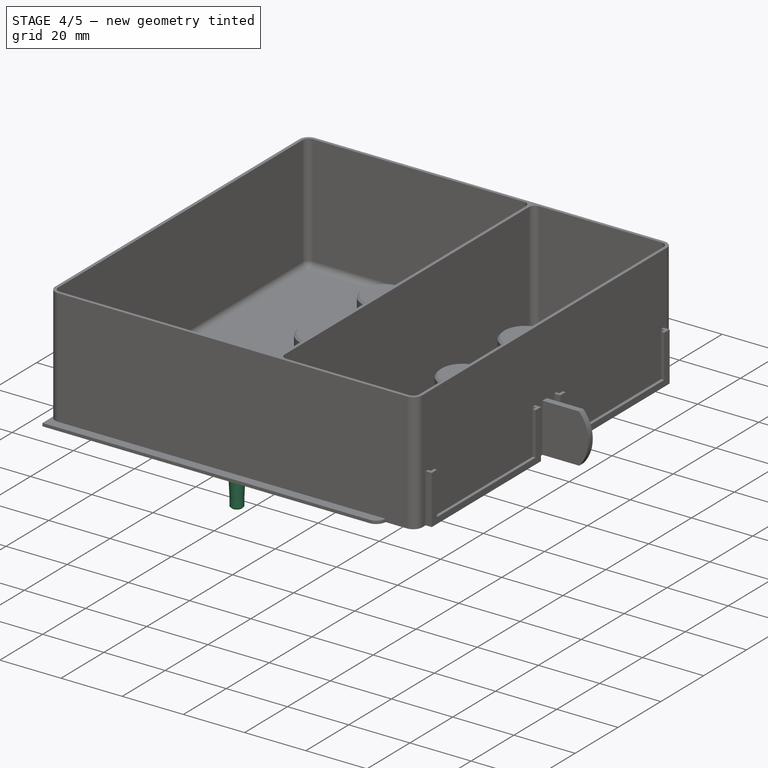
[diagram: stage 4 of 5 — iso view after this stage's code; geometry added in this stage tinted green]
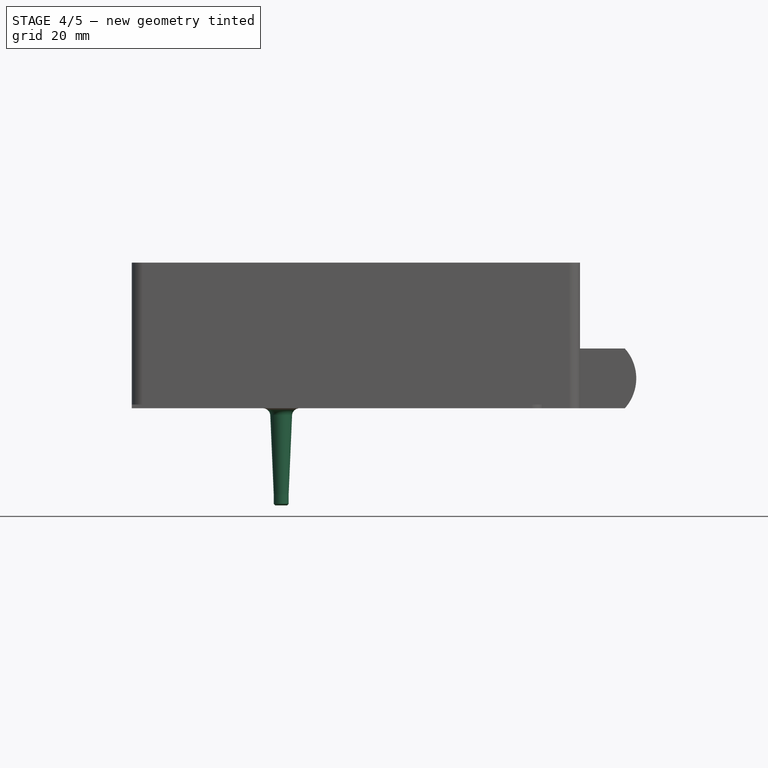
[diagram: stage 4 of 5 — front view after this stage's code; geometry added in this stage tinted green]
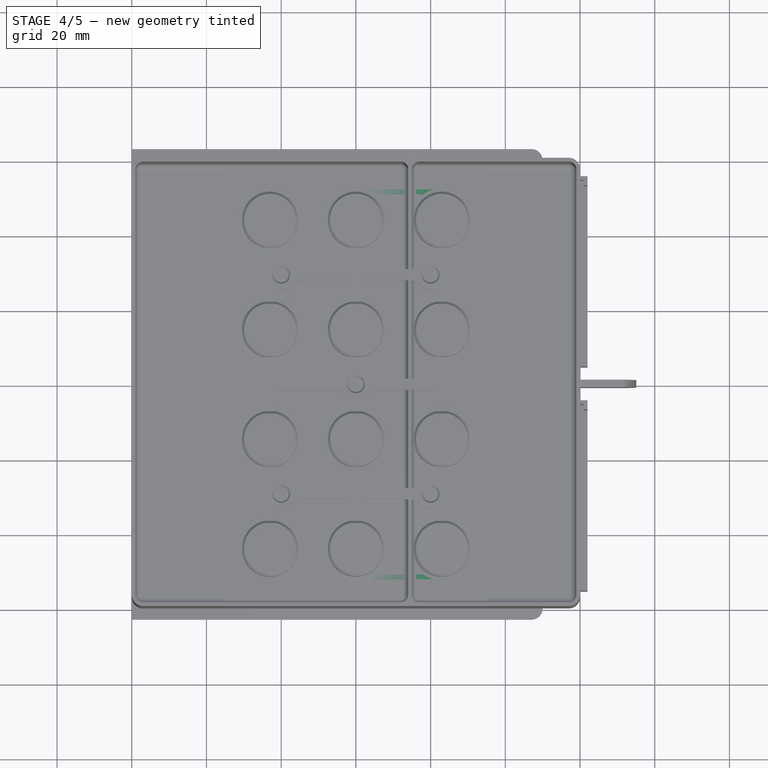
[diagram: stage 4 of 5 — top view after this stage's code; geometry added in this stage tinted green]
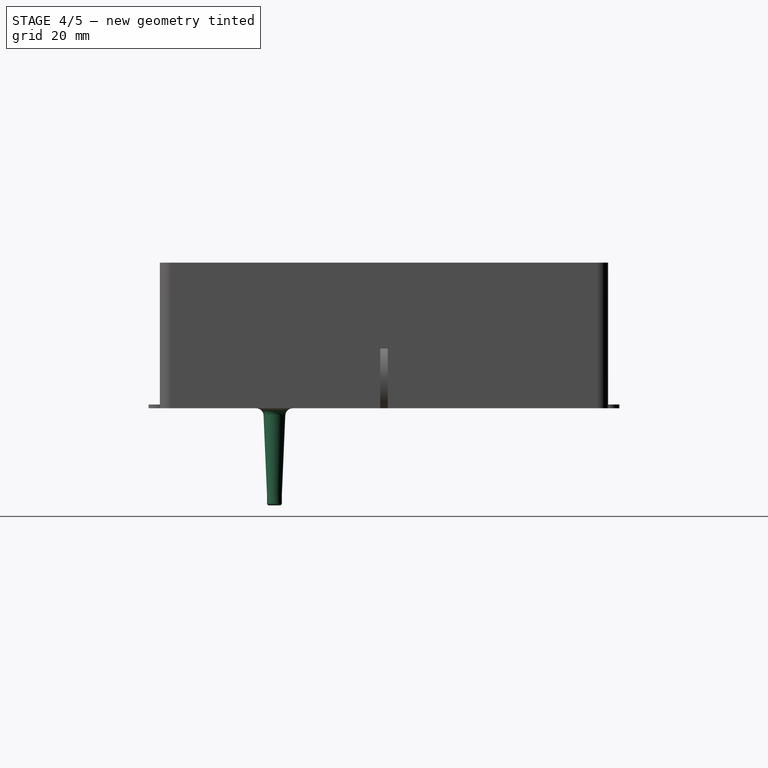
[diagram: stage 4 of 5 — right view after this stage's code; geometry added in this stage tinted green]
FEATURE [Sketcher::SketchObject] Sketch007
  FullyConstrained = true
  MapMode = 5
  Support = -> [XY_Plane002]
  sketch-geometry (41):
    g0: LineSegment StartX=-33.5 StartY=58.5 StartZ=0 EndX=33.5 EndY=58.5 EndZ=0
    g1: LineSegment StartX=36 StartY=56 StartZ=0 EndX=36 EndY=-56 EndZ=0
    g2: LineSegment StartX=33.5 StartY=-58.5 StartZ=0 EndX=-33.5 EndY=-58.5 EndZ=0
    g3: LineSegment StartX=-36 StartY=-56 StartZ=0 EndX=-36 EndY=56 EndZ=0
    g4: ArcOfCircle CenterX=-33.5 CenterY=56 CenterZ=0 NormalX=0 NormalY=0 NormalZ=1 AngleXU=0 Radius=2.5 StartAngle=1.5708 EndAngle=3.14159
    g5: ArcOfCircle CenterX=33.5 CenterY=56 CenterZ=0 NormalX=0 NormalY=0 NormalZ=1 AngleXU=0 Radius=2.5 StartAngle=5e-16 EndAngle=1.5708
    g6: ArcOfCircle CenterX=33.5 CenterY=-56 CenterZ=0 NormalX=0 NormalY=0 NormalZ=1 AngleXU=0 Radius=2.5 StartAngle=4.71239 EndAngle=6.28319
    g7: ArcOfCircle CenterX=-33.5 CenterY=-56 CenterZ=0 NormalX=0 NormalY=0 NormalZ=1 AngleXU=0 Radius=2.5 StartAngle=3.14159 EndAngle=4.71239
    g8: LineSegment StartX=-23 StartY=44 StartZ=0 EndX=-23 EndY=14.6667 EndZ=0
    g9: LineSegment StartX=-23 StartY=14.6667 StartZ=0 EndX=-23 EndY=-14.6667 EndZ=0
    g10: LineSegment StartX=-23 StartY=-14.6667 StartZ=0 EndX=-23 EndY=-44 EndZ=0
    g11: LineSegment StartX=-23 StartY=-14.6667 StartZ=0 EndX=0 EndY=-14.6667 EndZ=0
    g12: LineSegment StartX=-23 StartY=14.6667 StartZ=0 EndX=0 EndY=14.6667 EndZ=0
    g13: LineSegment StartX=0 StartY=14.6667 StartZ=0 EndX=23 EndY=14.6667 EndZ=0
    g14: LineSegment StartX=0 StartY=-14.6667 StartZ=0 EndX=23 EndY=-14.6667 EndZ=0
    g15: LineSegment StartX=0 StartY=14.6667 StartZ=0 EndX=0 EndY=44 EndZ=0
    g16: LineSegment StartX=0 StartY=14.6667 StartZ=0 EndX=0 EndY=-14.6667 EndZ=0
    g17: LineSegment StartX=0 StartY=-14.6667 StartZ=0 EndX=0 EndY=-44 EndZ=0
    g18: LineSegment StartX=23 StartY=14.6667 StartZ=0 EndX=23 EndY=44 EndZ=0
    g19: LineSegment StartX=23 StartY=14.6667 StartZ=0 EndX=23 EndY=-14.6667 EndZ=0
    g20: LineSegment StartX=23 StartY=-14.6667 StartZ=0 EndX=23 EndY=-44 EndZ=0
    g21: LineSegment StartX=23 StartY=-44 StartZ=0 EndX=0 EndY=-44 EndZ=0
    g22: LineSegment StartX=-23 StartY=-44 StartZ=0 EndX=0 EndY=-44 EndZ=0
    g23: LineSegment StartX=-23 StartY=44 StartZ=0 EndX=0 EndY=44 EndZ=0
    g24: LineSegment StartX=0 StartY=44 StartZ=0 EndX=23 EndY=44 EndZ=0
    g25: Circle CenterX=-23 CenterY=44 CenterZ=0 NormalX=0 NormalY=0 NormalZ=1 AngleXU=0 Radius=8.5
    g26: Circle CenterX=-23 CenterY=14.6667 CenterZ=0 NormalX=0 NormalY=0 NormalZ=1 AngleXU=0 Radius=8.5
    g27: Circle CenterX=-23 CenterY=-14.6667 CenterZ=0 NormalX=0 NormalY=0 NormalZ=1 AngleXU=0 Radius=8.5
    g28: Circle CenterX=-23 CenterY=-44 CenterZ=0 NormalX=0 NormalY=0 NormalZ=1 AngleXU=0 Radius=8.5
    g29: Circle CenterX=0 CenterY=-44 CenterZ=0 NormalX=0 NormalY=0 NormalZ=1 AngleXU=0 Radius=8.5
    g30: Circle CenterX=0 CenterY=-14.6667 CenterZ=0 NormalX=0 NormalY=0 NormalZ=1 AngleXU=0 Radius=8.5
    g31: Circle CenterX=0 CenterY=14.6667 CenterZ=0 NormalX=0 NormalY=0 NormalZ=1 AngleXU=0 Radius=8.5
    g32: Circle CenterX=0 CenterY=44 CenterZ=0 NormalX=0 NormalY=0 NormalZ=1 AngleXU=0 Radius=8.5
    g33: Circle CenterX=23 CenterY=44 CenterZ=0 NormalX=0 NormalY=0 NormalZ=1 AngleXU=0 Radius=8.5
    g34: Circle CenterX=23 CenterY=14.6667 CenterZ=0 NormalX=0 NormalY=0 NormalZ=1 AngleXU=0 Radius=8.5
    g35: Circle CenterX=23 CenterY=-14.6667 CenterZ=0 NormalX=0 NormalY=0 NormalZ=1 AngleXU=0 Radius=8.5
    g36: Circle CenterX=23 CenterY=-44 CenterZ=0 NormalX=0 NormalY=0 NormalZ=1 AngleXU=0 Radius=8.5
    g37: LineSegment StartX=-11.5 StartY=29.3333 StartZ=0 EndX=11.5 EndY=29.3333 EndZ=0
    g38: LineSegment StartX=11.5 StartY=29.3333 StartZ=0 EndX=11.5 EndY=-29.3333 EndZ=0
    g39: LineSegment StartX=11.5 StartY=-29.3333 StartZ=0 EndX=-11.5 EndY=-29.3333 EndZ=0
    g40: LineSegment StartX=-11.5 StartY=-29.3333 StartZ=0 EndX=-11.5 EndY=29.3333 EndZ=0
  constraints (99):
    c: Horizontal(g0)
    c: Horizontal(g2)
    c: Vertical(g1)
    c: Vertical(g3)
    c: Tangent(g3,g4) = 1.5708
    c: Tangent(g0,g4) = 1.5708
    c: Tangent(g0,g5) = 1.5708
    c: Tangent(g1,g5) = 1.5708
    c: Tangent(g1,g6) = 1.5708
    c: Tangent(g2,g6) = 1.5708
    c: Tangent(g2,g7) = 1.5708
    c: Tangent(g3,g7) = 1.5708
    c: DistanceX(g3,g1) = 72
    c: DistanceY(g2,g0) = 117
    c: Symmetric(g7,g5,g-1)
    c: Equal(g4,g5)
    c: Equal(g5,g6)
    c: Equal(g6,g7)
    c: Radius(g4) = 2.5
    c: Vertical(g8)
    c: Coincident(g9,g8)
    c: Vertical(g9)
    c: Coincident(g10,g9)
    c: Coincident(g11,g9)
    c: PointOnObject(g11,g-2)
    c: Horizontal(g11)
    c: PointOnObject(g12,g-2)
    c: Horizontal(g12)
    c: Coincident(g12,g8)
    c: Coincident(g13,g12)
    c: Horizontal(g13)
    c: Coincident(g14,g11)
    c: Horizontal(g14)
    c: Coincident(g15,g12)
    c: PointOnObject(g15,g-2)
    c: Coincident(g16,g12)
    c: Coincident(g16,g11)
    c: Coincident(g17,g11)
    c: PointOnObject(g17,g-2)
    c: Coincident(g18,g13)
    c: Vertical(g18)
    c: Coincident(g19,g13)
    c: Coincident(g19,g14)
    c: Vertical(g19)
    c: Coincident(g20,g14)
    c: Vertical(g20)
    c: Coincident(g21,g20)
    c: Coincident(g21,g17)
    c: Horizontal(g21)
    c: Coincident(g22,g17)
    c: Horizontal(g22)
    c: Coincident(g23,g8)
    c: Coincident(g23,g15)
    c: Horizontal(g23)
    c: Coincident(g24,g15)
    c: Coincident(g24,g18)
    c: Horizontal(g24)
    c: Equal(g23,g24)
    c: Equal(g8,g9)
    c: Equal(g9,g10)
    c: Coincident(g22,g10)
    c: Diameter(g25) = 17
    c: Coincident(g25,g8)
    c: Coincident(g26,g8)
    c: Coincident(g27,g9)
    c: Coincident(g28,g10)
    c: Coincident(g29,g17)
    c: Coincident(g30,g11)
    c: Coincident(g31,g12)
    c: Coincident(g32,g15)
    c: Coincident(g33,g18)
    c: Coincident(g34,g13)
    c: Coincident(g35,g14)
    c: Coincident(g36,g20)
    c: Equal(g25,g26)
    c: Equal(g26,g27)
    c: Equal(g27,g28)
    c: Equal(g28,g29)
    c: Equal(g29,g30)
    c: Equal(g30,g31)
    c: Equal(g31,g32)
    c: Equal(g32,g33)
    c: Equal(g33,g34)
    c: Equal(g34,g35)
    c: Equal(g35,g36)
    c: DistanceX(g28,g36) = 46
    c: DistanceY(g36,g33) = 88
    c: Symmetric(g28,g25,g-1)
    c: Coincident(g37,g38)
    c: Coincident(g38,g39)
    c: Coincident(g39,g40)
    c: Coincident(g40,g37)
    c: Horizontal(g39)
    c: Vertical(g38)
    c: Symmetric(g28,g30,g39)
    c: Symmetric(g31,g25,g37)
    c: Symmetric(g31,g33,g37)
    c: DistanceX(g37,g37) = 23
    c: DistanceY(g40,g40) = 58.6667
FEATURE [PartDesign::Pad] Pad004
  AllowMultiFace = false
  Direction = (0,0,1)
  Length = 1.2
  Length2 = 100
  Profile = -> Sketch007
  Type = 0
FEATURE [Sketcher::SketchObject] Sketch008
  AttachmentOffset = pos=(0,0,29.333) rot=(0,0,1;0rad)
  FullyConstrained = true
  MapMode = 5
  Placement = pos=(0,-29.333,-6.5e-15) rot=(1,0,0;1.5708rad)
  Support = -> [XZ_Plane002]
  sketch-geometry (8):
    g0: LineSegment StartX=-20 StartY=0 StartZ=0 EndX=-20 EndY=-26 EndZ=0
    g1: LineSegment StartX=-18 StartY=-23 StartZ=0 EndX=-17.0832 EndY=-1.91313 EndZ=0
    g2: ArcOfCircle CenterX=-15.0851 CenterY=-2 CenterZ=0 NormalX=0 NormalY=0 NormalZ=1 AngleXU=0 Radius=2 StartAngle=1.5708 EndAngle=3.09814
    g3: LineSegment StartX=-15.0851 StartY=0 StartZ=0 EndX=-20 EndY=0 EndZ=0
    g4: LineSegment StartX=-17.0832 StartY=-1.91313 StartZ=0 EndX=-17 EndY=0 EndZ=0
    g5: LineSegment StartX=-20 StartY=-26 StartZ=0 EndX=-18.4 EndY=-26 EndZ=0
    g6: LineSegment StartX=-18.4 StartY=-26 StartZ=0 EndX=-18 EndY=-25.6 EndZ=0
    g7: LineSegment StartX=-18 StartY=-25.6 StartZ=0 EndX=-18 EndY=-23 EndZ=0
  constraints (24):
    c: PointOnObject(g0,g-1)
    c: Vertical(g0)
    c: Tangent(g1,g2) = 1.5708
    c: PointOnObject(g2,g-1)
    c: Coincident(g2,g3)
    c: Coincident(g3,g0)
    c: Coincident(g4,g1)
    c: PointOnObject(g4,g3)
    c: PointOnObject(g4,g1)
    c: DistanceX(g0,g4) = 3
    c: Radius(g2) = 2
    c: Tangent(g2,g3)
    c: DistanceY(g0,g0) = 26
    c: Coincident(g0,g5)
    c: Horizontal(g5)
    c: Coincident(g5,g6)
    c: Coincident(g6,g7)
    c: Coincident(g7,g1)
    c: Vertical(g7)
    c: DistanceY(g5,g1) = 3
    c: Angle(g6,g5) = 2.35619
    c: DistanceY(g5,g6) = 0.4
    c: DistanceX(g0,g6) = 2
    c: DistanceX(g0,g-1) = 20
FEATURE [PartDesign::Revolution] Revolution
  AllowMultiFace = false
  Angle = 360
  Axis = (0,2e-16,-1)
  Base = (-20,-29.333,-6.5e-15)
  BaseFeature = -> Pad004
  Profile = -> Sketch008
  ReferenceAxis = -> Sketch008 [Edge2]
FEATURE [PartDesign::Chamfer] Chamfer001
  Angle = 45
  Base = -> Chamfer [Edge158,Edge176,Edge194,Edge202,Edge329,Edge347,Edge150,Edge142,Edge210,Edge217,Edge229,Edge4,Edge315,Edge297,Edge242,Edge256,Edge267,Edge281]
  BaseFeature = -> Chamfer
  ChamferType = 0
  FlipDirection = false
  Size = 0.6
  Size2 = 1
  SupportTransform = false
  UseAllEdges = false
FEATURE [Part::Feature] Part__Feature  label="Collet_d8"
  Placement = pos=(-45.5,44,26) rot=(0,1,0;3.14159rad)
  shape: bbox 17 x 17 x 27.5 mm, 130 faces (baked)
FEATURE [PartDesign::Chamfer] Chamfer004
  Angle = 45
  Base = -> Chamfer001 [Face6,Edge322,Edge324,Edge320,Edge139,Edge138]
  BaseFeature = -> Chamfer001
  ChamferType = 0
  FlipDirection = false
  Size = 0.4
  Size2 = 1
  SupportTransform = false
  UseAllEdges = false
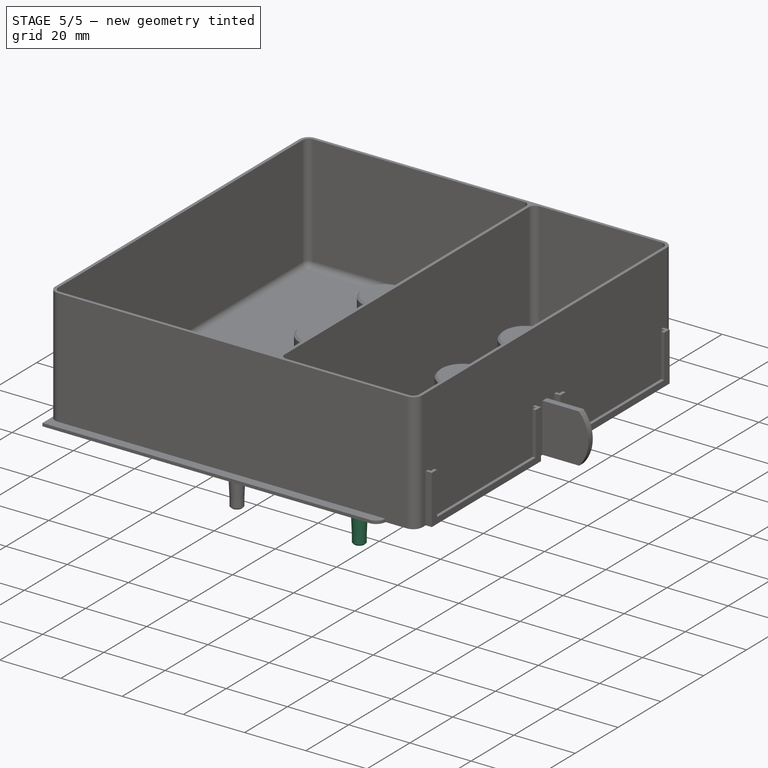
[diagram: stage 5 of 5 — iso view after this stage's code; geometry added in this stage tinted green]
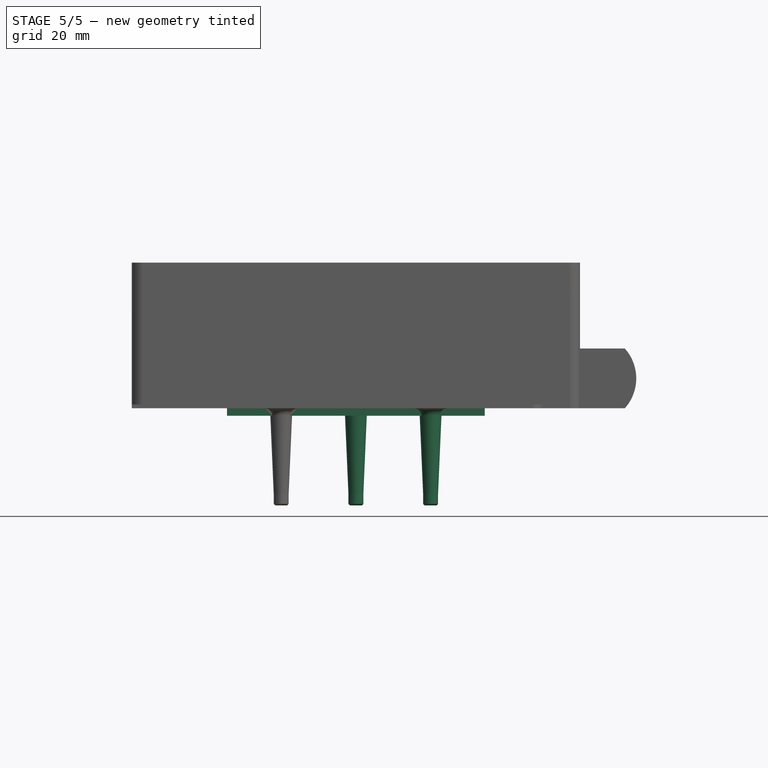
[diagram: stage 5 of 5 — front view after this stage's code; geometry added in this stage tinted green]
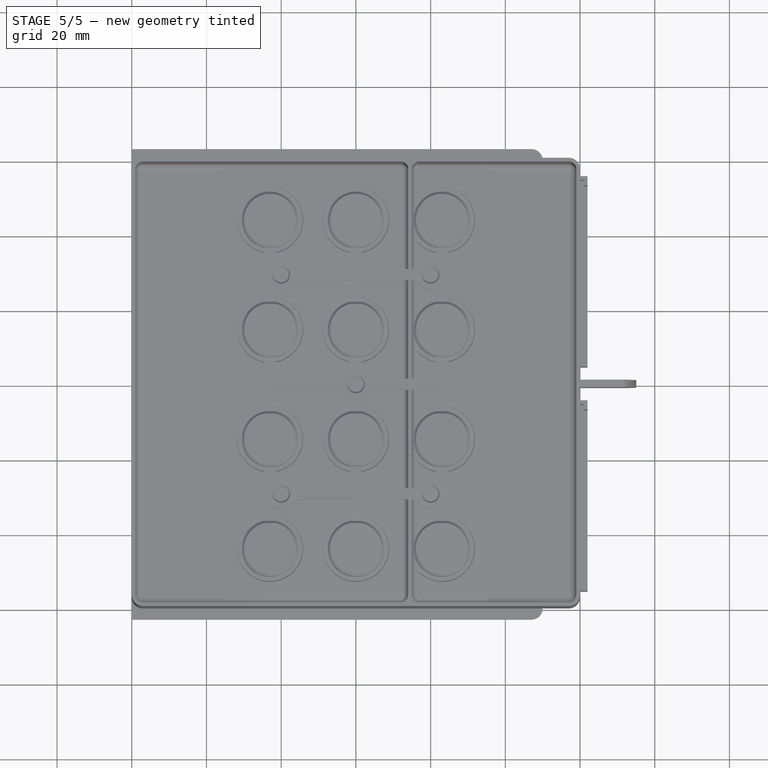
[diagram: stage 5 of 5 — top view after this stage's code; geometry added in this stage tinted green]
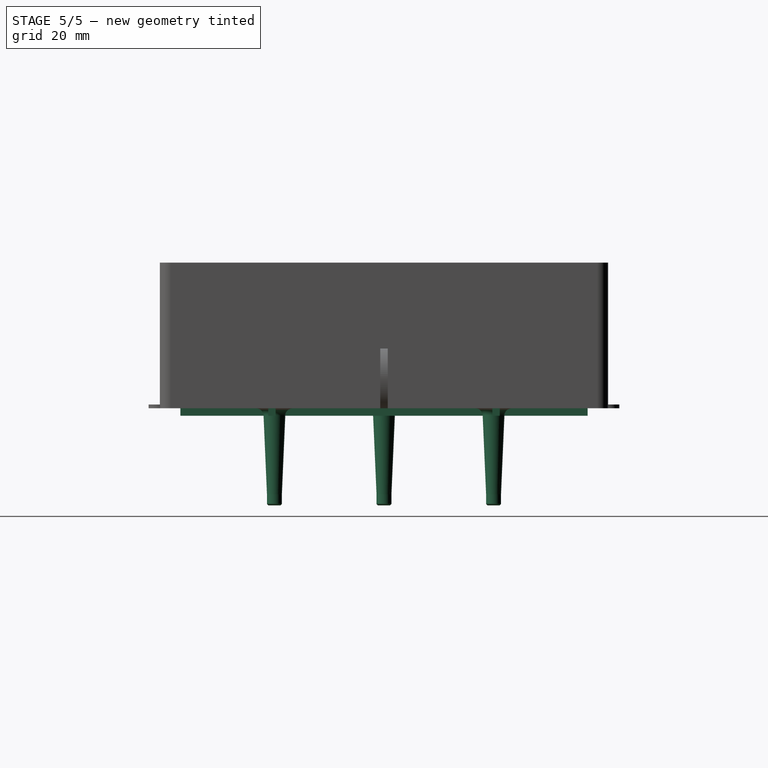
[diagram: stage 5 of 5 — right view after this stage's code; geometry added in this stage tinted green]
FEATURE [PartDesign::Mirrored] Mirrored
  MirrorPlane = -> YZ_Plane002
  Overlap = 0
FEATURE [PartDesign::Mirrored] Mirrored001
  MirrorPlane = -> XZ_Plane002
  Overlap = 0
FEATURE [PartDesign::MultiTransform] MultiTransform
  BaseFeature = -> Revolution
  Originals = -> [Revolution]
  Overlap = 0
  Transformations = -> [Mirrored,Mirrored001]
FEATURE [Sketcher::SketchObject] Sketch009
  FullyConstrained = true
  MapMode = 5
  Placement = pos=(0,0,0) rot=(1,0,0;1.5708rad)
  Support = -> [XZ_Plane002]
  expr: Constraints[11] = Sketch008.Constraints[12]
  expr: Constraints[18] = Sketch008.Constraints[19]
  expr: Constraints[19] = Sketch008.Constraints[20]
  expr: Constraints[20] = Sketch008.Constraints[21]
  expr: Constraints[21] = Sketch008.Constraints[22]
  expr: Constraints[8] = Sketch008.Constraints[9]
  expr: Constraints[9] = Sketch008.Constraints[10]
  sketch-geometry (8):
    g0: LineSegment StartX=0 StartY=0 StartZ=0 EndX=0 EndY=-26 EndZ=0
    g1: LineSegment StartX=2 StartY=-23 StartZ=0 EndX=2.91682 EndY=-1.91313 EndZ=0
    g2: ArcOfCircle CenterX=4.91493 CenterY=-2 CenterZ=0 NormalX=0 NormalY=0 NormalZ=1 AngleXU=0 Radius=2 StartAngle=1.5708 EndAngle=3.09814
    g3: LineSegment StartX=4.91493 StartY=0 StartZ=0 EndX=0 EndY=0 EndZ=0
    g4: LineSegment StartX=2.91682 StartY=-1.91313 StartZ=0 EndX=3 EndY=0 EndZ=0
    g5: LineSegment StartX=0 StartY=-26 StartZ=0 EndX=1.6 EndY=-26 EndZ=0
    g6: LineSegment StartX=1.6 StartY=-26 StartZ=0 EndX=2 EndY=-25.6 EndZ=0
    g7: LineSegment StartX=2 StartY=-25.6 StartZ=0 EndX=2 EndY=-23 EndZ=0
  constraints (23):
    c: Vertical(g0)
    c: Tangent(g1,g2) = 1.5708
    c: PointOnObject(g2,g-1)
    c: Coincident(g2,g3)
    c: Coincident(g3,g0)
    c: Coincident(g4,g1)
    c: PointOnObject(g4,g3)
    c: PointOnObject(g4,g1)
    c: DistanceX(g0,g4) = 3
    c: Radius(g2) = 2
    c: Tangent(g2,g3)
    c: DistanceY(g0,g0) = 26
    c: Coincident(g0,g5)
    c: Horizontal(g5)
    c: Coincident(g5,g6)
    c: Coincident(g6,g7)
    c: Coincident(g7,g1)
    c: Vertical(g7)
    c: DistanceY(g5,g1) = 3
    c: Angle(g6,g5) = 2.35619
    c: DistanceY(g5,g6) = 0.4
    c: DistanceX(g0,g6) = 2
    c: Coincident(g0,g-1)
FEATURE [PartDesign::Revolution] Revolution001
  AllowMultiFace = false
  Angle = 360
  Axis = (-3e-16,3e-16,1)
  Base = (0,0,0)
  BaseFeature = -> MultiTransform
  Profile = -> Sketch009
  ReferenceAxis = -> Z_Axis002
  Reversed = true
FEATURE [Sketcher::SketchObject] Sketch010
  AttachmentOffset = pos=(0,0,0) rot=(1,0,0;3.14159rad)
  FullyConstrained = true
  MapMode = 5
  Placement = pos=(0,0,0) rot=(1,0,0;3.14159rad)
  Support = -> [XY_Plane002]
  sketch-geometry (82):
    g0: LineSegment StartX=-12 StartY=58.5 StartZ=0 EndX=-12 EndY=-58.5 EndZ=0
    g1: LineSegment StartX=12 StartY=58.5 StartZ=0 EndX=12 EndY=-58.5 EndZ=0
    g2: LineSegment StartX=-38.5 StartY=30 StartZ=0 EndX=38.5 EndY=30 EndZ=0
    g3: LineSegment StartX=-38.5 StartY=-30 StartZ=0 EndX=38.5 EndY=-30 EndZ=0
    g4: LineSegment StartX=-38.5 StartY=58.5 StartZ=0 EndX=38.5 EndY=58.5 EndZ=0
    g5: LineSegment StartX=38.5 StartY=58.5 StartZ=0 EndX=38.5 EndY=-58.5 EndZ=0
    g6: LineSegment StartX=38.5 StartY=-58.5 StartZ=0 EndX=-38.5 EndY=-58.5 EndZ=0
    g7: LineSegment StartX=-38.5 StartY=-58.5 StartZ=0 EndX=-38.5 EndY=58.5 EndZ=0
    g8: LineSegment StartX=11 StartY=-54.5 StartZ=0 EndX=13 EndY=-54.5 EndZ=0
    g9: LineSegment StartX=13 StartY=-54.5 StartZ=0 EndX=13 EndY=-31 EndZ=0
    g10: LineSegment StartX=13 StartY=-31 StartZ=0 EndX=34.5 EndY=-31 EndZ=0
    g11: LineSegment StartX=34.5 StartY=-31 StartZ=0 EndX=34.5 EndY=-29 EndZ=0
    g12: LineSegment StartX=34.5 StartY=-29 StartZ=0 EndX=13 EndY=-29 EndZ=0
    g13: LineSegment StartX=13 StartY=-29 StartZ=0 EndX=13 EndY=-1 EndZ=0
    g14: LineSegment StartX=13 StartY=-1 StartZ=0 EndX=34.5 EndY=-1 EndZ=0
    g15: LineSegment StartX=34.5 StartY=-1 StartZ=0 EndX=34.5 EndY=1 EndZ=0
    g16: LineSegment StartX=34.5 StartY=1 StartZ=0 EndX=13 EndY=1 EndZ=0
    g17: LineSegment StartX=13 StartY=1 StartZ=0 EndX=13 EndY=29 EndZ=0
    g18: LineSegment StartX=13 StartY=29 StartZ=0 EndX=34.5 EndY=29 EndZ=0
    g19: LineSegment StartX=34.5 StartY=29 StartZ=0 EndX=34.5 EndY=31 EndZ=0
    g20: LineSegment StartX=34.5 StartY=31 StartZ=0 EndX=13 EndY=31 EndZ=0
    g21: LineSegment StartX=13 StartY=31 StartZ=0 EndX=13 EndY=54.5 EndZ=0
    g22: LineSegment StartX=13 StartY=54.5 StartZ=0 EndX=11 EndY=54.5 EndZ=0
    g23: LineSegment StartX=11 StartY=54.5 StartZ=0 EndX=11 EndY=31 EndZ=0
    g24: LineSegment StartX=11 StartY=31 StartZ=0 EndX=-11 EndY=31 EndZ=0
    g25: LineSegment StartX=-11 StartY=31 StartZ=0 EndX=-11 EndY=54.5 EndZ=0
    g26: LineSegment StartX=-11 StartY=54.5 StartZ=0 EndX=-13 EndY=54.5 EndZ=0
    g27: LineSegment StartX=-13 StartY=54.5 StartZ=0 EndX=-13 EndY=31 EndZ=0
    g28: LineSegment StartX=-13 StartY=31 StartZ=0 EndX=-34.5 EndY=31 EndZ=0
    g29: LineSegment StartX=-34.5 StartY=31 StartZ=0 EndX=-34.5 EndY=29 EndZ=0
    g30: LineSegment StartX=-34.5 StartY=29 StartZ=0 EndX=-13 EndY=29 EndZ=0
    g31: LineSegment StartX=-13 StartY=29 StartZ=0 EndX=-13 EndY=1 EndZ=0
    g32: LineSegment StartX=-13 StartY=1 StartZ=0 EndX=-34.5 EndY=1 EndZ=0
    g33: LineSegment StartX=-34.5 StartY=1 StartZ=0 EndX=-34.5 EndY=-1 EndZ=0
    g34: LineSegment StartX=-34.5 StartY=-1 StartZ=0 EndX=-13 EndY=-1 EndZ=0
    g35: LineSegment StartX=-13 StartY=-1 StartZ=0 EndX=-13 EndY=-29 EndZ=0
    g36: LineSegment StartX=-13 StartY=-29 StartZ=0 EndX=-34.5 EndY=-29 EndZ=0
    g37: LineSegment StartX=-34.5 StartY=-29 StartZ=0 EndX=-34.5 EndY=-31 EndZ=0
    g38: LineSegment StartX=-34.5 StartY=-31 StartZ=0 EndX=-13 EndY=-31 EndZ=0
    g39: LineSegment StartX=-13 StartY=-31 StartZ=0 EndX=-13 EndY=-54.5 EndZ=0
    g40: LineSegment StartX=-13 StartY=-54.5 StartZ=0 EndX=-11 EndY=-54.5 EndZ=0
    g41: LineSegment StartX=-11 StartY=-54.5 StartZ=0 EndX=-11 EndY=-31 EndZ=0
    g42: LineSegment StartX=-11 StartY=-31 StartZ=0 EndX=11 EndY=-31 EndZ=0
    g43: LineSegment StartX=11 StartY=-31 StartZ=0 EndX=11 EndY=-54.5 EndZ=0
    g44: LineSegment StartX=-11 StartY=29 StartZ=0 EndX=11 EndY=29 EndZ=0
    g45: LineSegment StartX=11 StartY=29 StartZ=0 EndX=11 EndY=1 EndZ=0
    g46: LineSegment StartX=11 StartY=1 StartZ=0 EndX=-11 EndY=1 EndZ=0
    g47: LineSegment StartX=-11 StartY=1 StartZ=0 EndX=-11 EndY=29 EndZ=0
    g48: LineSegment StartX=-11 StartY=-1 StartZ=0 EndX=11 EndY=-1 EndZ=0
    g49: LineSegment StartX=11 StartY=-1 StartZ=0 EndX=11 EndY=-29 EndZ=0
    g50: LineSegment StartX=11 StartY=-29 StartZ=0 EndX=-11 EndY=-29 EndZ=0
    g51: LineSegment StartX=-11 StartY=-29 StartZ=0 EndX=-11 EndY=-1 EndZ=0
    g52: LineSegment StartX=-13 StartY=-29 StartZ=0 EndX=-11 EndY=-29 EndZ=0
    g53: LineSegment StartX=-11 StartY=-29 StartZ=0 EndX=-11 EndY=-31 EndZ=0
    g54: LineSegment StartX=-11 StartY=-31 StartZ=0 EndX=-13 EndY=-31 EndZ=0
    g55: LineSegment StartX=-13 StartY=-31 StartZ=0 EndX=-13 EndY=-29 EndZ=0
    g56: LineSegment StartX=11 StartY=-29 StartZ=0 EndX=13 EndY=-29 EndZ=0
    g57: LineSegment StartX=13 StartY=-29 StartZ=0 EndX=13 EndY=-31 EndZ=0
    g58: LineSegment StartX=13 StartY=-31 StartZ=0 EndX=11 EndY=-31 EndZ=0
    g59: LineSegment StartX=11 StartY=-31 StartZ=0 EndX=11 EndY=-29 EndZ=0
    g60: LineSegment StartX=11 StartY=1 StartZ=0 EndX=13 EndY=1 EndZ=0
    g61: LineSegment StartX=13 StartY=1 StartZ=0 EndX=13 EndY=-1 EndZ=0
    g62: LineSegment StartX=13 StartY=-1 StartZ=0 EndX=11 EndY=-1 EndZ=0
    g63: LineSegment StartX=11 StartY=-1 StartZ=0 EndX=11 EndY=1 EndZ=0
    g64: LineSegment StartX=-13 StartY=1 StartZ=0 EndX=-11 EndY=1 EndZ=0
    g65: LineSegment StartX=-11 StartY=1 StartZ=0 EndX=-11 EndY=-1 EndZ=0
    g66: LineSegment StartX=-11 StartY=-1 StartZ=0 EndX=-13 EndY=-1 EndZ=0
    g67: LineSegment StartX=-13 StartY=-1 StartZ=0 EndX=-13 EndY=1 EndZ=0
    g68: LineSegment StartX=-13 StartY=31 StartZ=0 EndX=-11 EndY=31 EndZ=0
    g69: LineSegment StartX=-11 StartY=31 StartZ=0 EndX=-11 EndY=29 EndZ=0
    g70: LineSegment StartX=-11 StartY=29 StartZ=0 EndX=-13 EndY=29 EndZ=0
    g71: LineSegment StartX=-13 StartY=29 StartZ=0 EndX=-13 EndY=31 EndZ=0
    g72: LineSegment StartX=11 StartY=31 StartZ=0 EndX=13 EndY=31 EndZ=0
    g73: LineSegment StartX=13 StartY=31 StartZ=0 EndX=13 EndY=29 EndZ=0
    g74: LineSegment StartX=13 StartY=29 StartZ=0 EndX=11 EndY=29 EndZ=0
    g75: LineSegment StartX=11 StartY=29 StartZ=0 EndX=11 EndY=31 EndZ=0
    g76: GeomPoint X=-12 Y=30 Z=0
    g77: GeomPoint X=12 Y=30 Z=0
    g78: GeomPoint X=12 Y=0 Z=0
    g79: GeomPoint X=-12 Y=-1.4794e-12 Z=0
    g80: GeomPoint X=-12 Y=-30 Z=0
    g81: GeomPoint X=12 Y=-30 Z=0
  constraints (210):
    c: Vertical(g0)
    c: Vertical(g1)
    c: Horizontal(g2)
    c: Horizontal(g3)
    c: Coincident(g4,g5)
    c: Coincident(g5,g6)
    c: Coincident(g6,g7)
    c: Coincident(g7,g4)
    c: Horizontal(g4)
    c: Horizontal(g6)
    c: Vertical(g5)
    c: Vertical(g7)
    c: Symmetric(g6,g4,g-1)
    c: DistanceX(g4,g4) = 77
    c: DistanceY(g7,g7) = 117
    c: PointOnObject(g2,g7)
    c: PointOnObject(g0,g4)
    c: PointOnObject(g1,g4)
    c: PointOnObject(g2,g5)
    c: PointOnObject(g3,g5)
    c: PointOnObject(g1,g6)
    c: Symmetric(g0,g1,g-2)
    c: DistanceX(g0,g1) = 24
    c: Horizontal(g8)
    c: Coincident(g8,g9)
    c: Vertical(g9)
    c: Coincident(g9,g10)
    c: Horizontal(g10)
    c: Coincident(g10,g11)
    c: Coincident(g11,g12)
    c: Horizontal(g12)
    c: Coincident(g12,g13)
    c: Vertical(g13)
    c: Coincident(g13,g14)
    c: Horizontal(g14)
    c: Coincident(g14,g15)
    c: Coincident(g15,g16)
    c: Horizontal(g16)
    c: Coincident(g16,g17)
    c: Vertical(g17)
    c: Coincident(g17,g18)
    c: Horizontal(g18)
    c: Coincident(g18,g19)
    c: Coincident(g19,g20)
    c: Horizontal(g20)
    c: Coincident(g20,g21)
    c: Vertical(g21)
    c: Coincident(g21,g22)
    c: Coincident(g22,g23)
    c: Vertical(g23)
    c: Coincident(g23,g24)
    c: Coincident(g24,g25)
    c: Vertical(g25)
    c: Coincident(g25,g26)
    c: Horizontal(g26)
    c: Coincident(g26,g27)
    c: Vertical(g27)
    c: Coincident(g27,g28)
    c: Horizontal(g28)
    c: Coincident(g28,g29)
    c: Vertical(g29)
    c: Coincident(g29,g30)
    c: Horizontal(g30)
    c: Coincident(g30,g31)
    c: Vertical(g31)
    c: Coincident(g31,g32)
    c: Horizontal(g32)
    c: Coincident(g32,g33)
    c: Coincident(g33,g34)
    c: Horizontal(g34)
    c: Coincident(g34,g35)
    c: Vertical(g35)
    c: Coincident(g35,g36)
    c: Horizontal(g36)
    c: Coincident(g36,g37)
    c: Coincident(g37,g38)
    c: Horizontal(g38)
    c: Coincident(g38,g39)
    c: Vertical(g39)
    c: Coincident(g39,g40)
    c: Coincident(g40,g41)
    c: Vertical(g41)
    c: Coincident(g41,g42)
    c: Horizontal(g42)
    c: Coincident(g42,g43)
    c: Coincident(g43,g8)
    c: Vertical(g43)
    c: Horizontal(g22)
    c: Horizontal(g40)
    c: Vertical(g37)
    c: Vertical(g11)
    c: Vertical(g15)
    c: Vertical(g33)
    c: Vertical(g19)
    c: Coincident(g44,g45)
    c: Coincident(g45,g46)
    c: Coincident(g46,g47)
    c: Coincident(g47,g44)
    c: Horizontal(g44)
    c: Horizontal(g46)
    c: Vertical(g45)
    c: Coincident(g48,g49)
    c: Coincident(g49,g50)
    c: Coincident(g50,g51)
    c: Coincident(g51,g48)
    c: Horizontal(g48)
    c: Vertical(g49)
    c: Vertical(g51)
    c: Coincident(g52,g53)
    c: Coincident(g53,g54)
    c: Coincident(g54,g55)
    c: Coincident(g55,g52)
    c: Horizontal(g52)
    c: Horizontal(g54)
    c: Vertical(g53)
    c: Vertical(g55)
    c: Coincident(g56,g57)
    c: Coincident(g57,g58)
    c: Coincident(g58,g59)
    c: Coincident(g59,g56)
    c: Horizontal(g56)
    c: Vertical(g57)
    c: Vertical(g59)
    c: Coincident(g60,g61)
    c: Coincident(g61,g62)
    c: Coincident(g62,g63)
    c: Coincident(g63,g60)
    c: Horizontal(g60)
    c: Horizontal(g62)
    c: Vertical(g63)
    c: Coincident(g64,g65)
    c: Coincident(g65,g66)
    c: Coincident(g66,g67)
    c: Coincident(g67,g64)
    c: Horizontal(g64)
    c: Horizontal(g66)
    c: Vertical(g67)
    c: Coincident(g68,g69)
    c: Coincident(g69,g70)
    c: Coincident(g70,g71)
    c: Coincident(g71,g68)
    c: Horizontal(g68)
    c: Horizontal(g70)
    c: Vertical(g69)
    c: Vertical(g71)
    c: Coincident(g72,g73)
    c: Coincident(g73,g74)
    c: Coincident(g74,g75)
    c: Coincident(g75,g72)
    c: Horizontal(g72)
    c: Horizontal(g74)
    c: Vertical(g75)
    c: PointOnObject(g80,g3)
    c: PointOnObject(g80,g0)
    c: PointOnObject(g81,g1)
    c: PointOnObject(g78,g-1)
    c: PointOnObject(g76,g2)
    c: Symmetric(g3,g2,g-1)
    c: Symmetric(g62,g60,g78)
    c: Symmetric(g66,g64,g79)
    c: Symmetric(g54,g52,g80)
    c: Symmetric(g58,g56,g81)
    c: Symmetric(g74,g72,g77)
    c: Symmetric(g70,g68,g76)
    c: Equal(g70,g69)
    c: Equal(g69,g75)
    c: Equal(g75,g74)
    c: Equal(g74,g64)
    c: Equal(g64,g65)
    c: Equal(g65,g63)
    c: Equal(g63,g62)
    c: Equal(g62,g56)
    c: Equal(g56,g59)
    c: Equal(g59,g53)
    c: Equal(g53,g52)
    c: Coincident(g12,g56)
    c: Coincident(g9,g57)
    c: Coincident(g49,g56)
    c: Coincident(g42,g58)
    c: Coincident(g41,g53)
    c: Coincident(g50,g52)
    c: Coincident(g35,g52)
    c: Coincident(g38,g54)
    c: Coincident(g34,g66)
    c: Coincident(g48,g65)
    c: Coincident(g64,g46)
    c: Coincident(g64,g31)
    c: Coincident(g60,g45)
    c: Coincident(g60,g16)
    c: Coincident(g13,g61)
    c: Coincident(g73,g17)
    c: Coincident(g44,g74)
    c: Coincident(g72,g20)
    c: Coincident(g72,g23)
    c: Coincident(g68,g24)
    c: Coincident(g68,g27)
    c: Coincident(g70,g30)
    c: Coincident(g44,g69)
    c: DistanceX(g26,g26) = 2
    c: DistanceY(g3,g2) = 60
    c: Horizontal(g25,g22)
    c: Horizontal(g40,g8)
    c: Symmetric(g8,g21,g-1)
    c: DistanceY(g39,g26) = 109
    c: Vertical(g36,g33)
    c: Vertical(g32,g29)
    c: Vertical(g18,g15)
    c: Vertical(g14,g11)
    c: Symmetric(g37,g10,g-2)
    c: DistanceX(g37,g10) = 69
FEATURE [PartDesign::Pad] Pad005
  AllowMultiFace = false
  BaseFeature = -> Revolution001
  Direction = (0,-1e-16,-1)
  Length = 2
  Length2 = 100
  Profile = -> Sketch010
  Type = 0
FEATURE [PartDesign::Chamfer] Chamfer003
  Angle = 45
  Base = -> Pad005 [Edge94,Edge92,Edge93,Edge88,Edge87,Edge90,Edge91,Edge86,Edge89,Edge83,Edge84,Edge85]
  BaseFeature = -> Pad005
  ChamferType = 0
  FlipDirection = false
  Size = 0.4
  Size2 = 1
  SupportTransform = false
  UseAllEdges = false
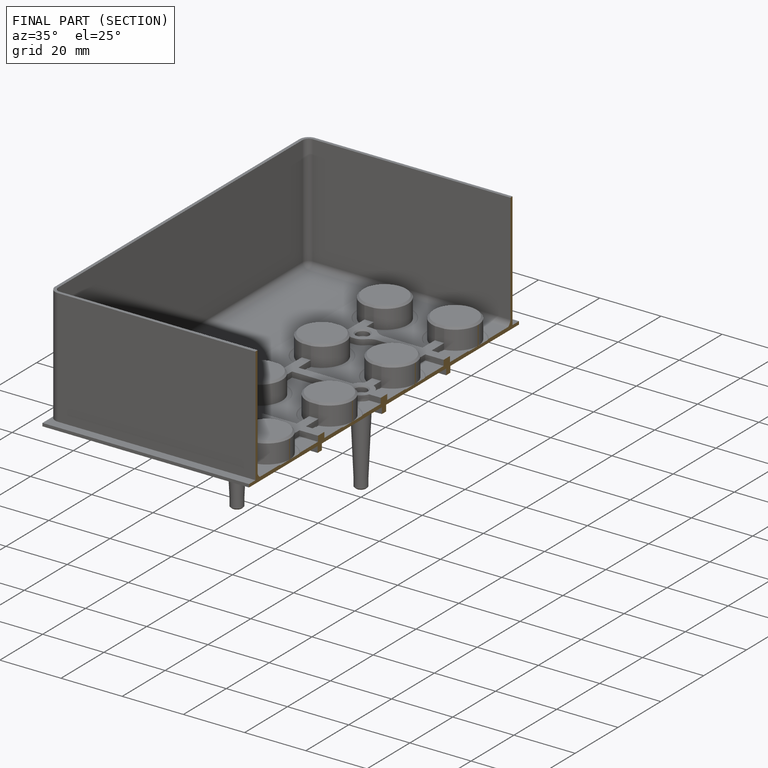
[diagram: finished part — half-section view (interior)]
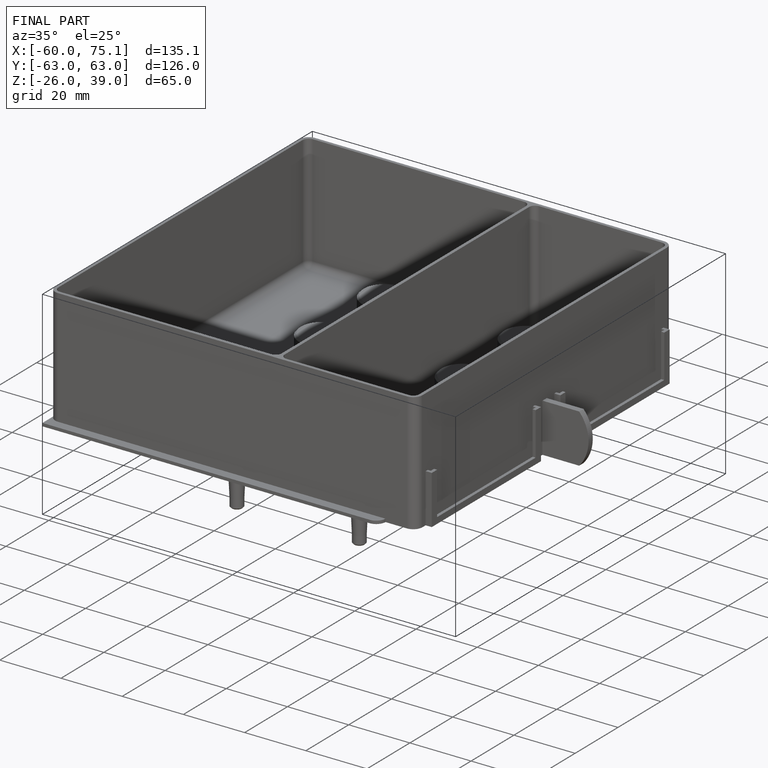
[diagram: finished part — iso view with bounding-box wireframe]
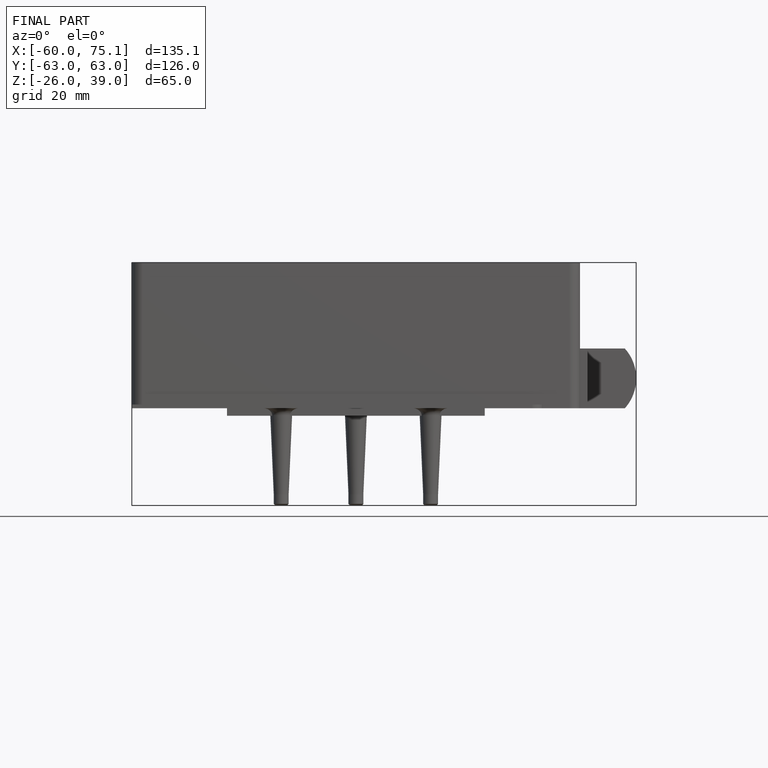
[diagram: finished part — front view with bounding-box wireframe]
